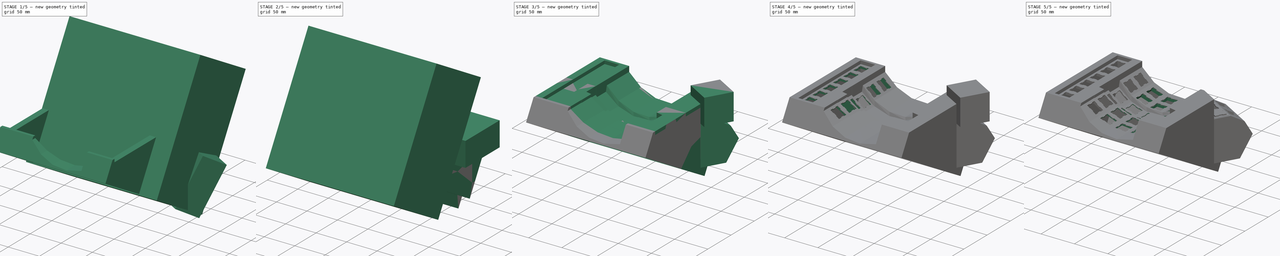
[diagram: build sequence overview — one tinted view per stage of 5, left to right]
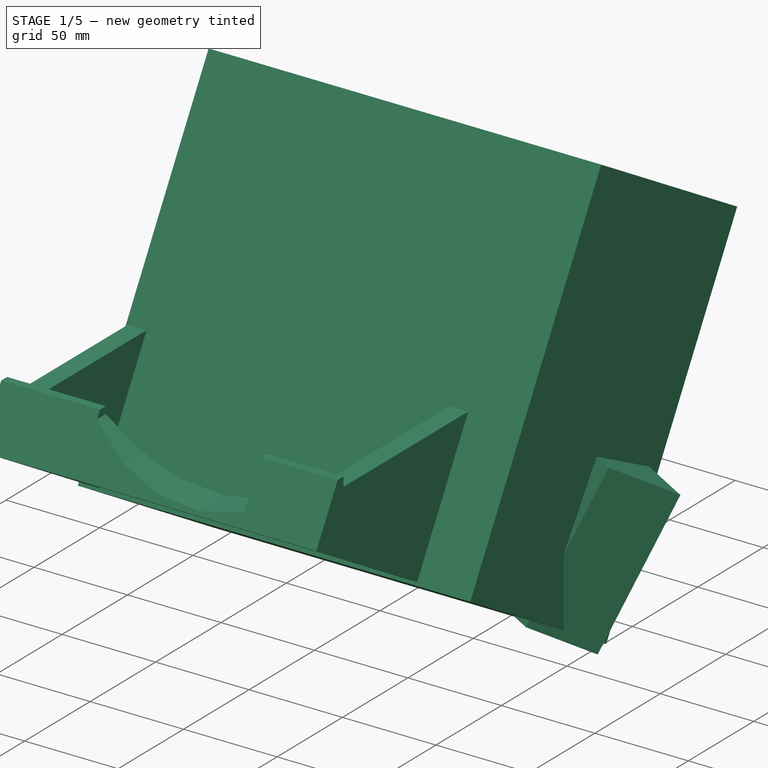
[diagram: stage 1 of 5 — iso view after this stage's code; geometry added in this stage tinted green]
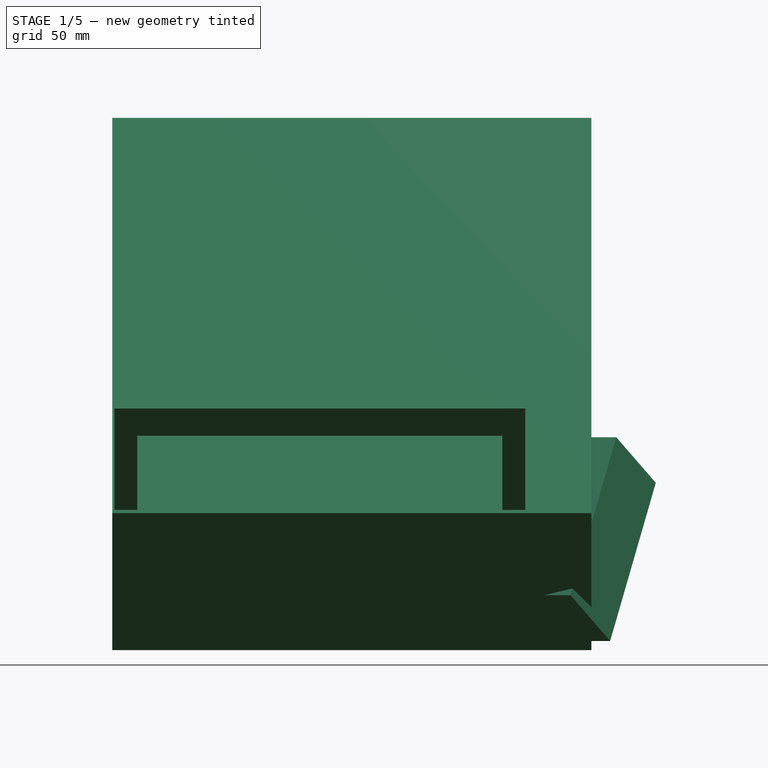
[diagram: stage 1 of 5 — front view after this stage's code; geometry added in this stage tinted green]
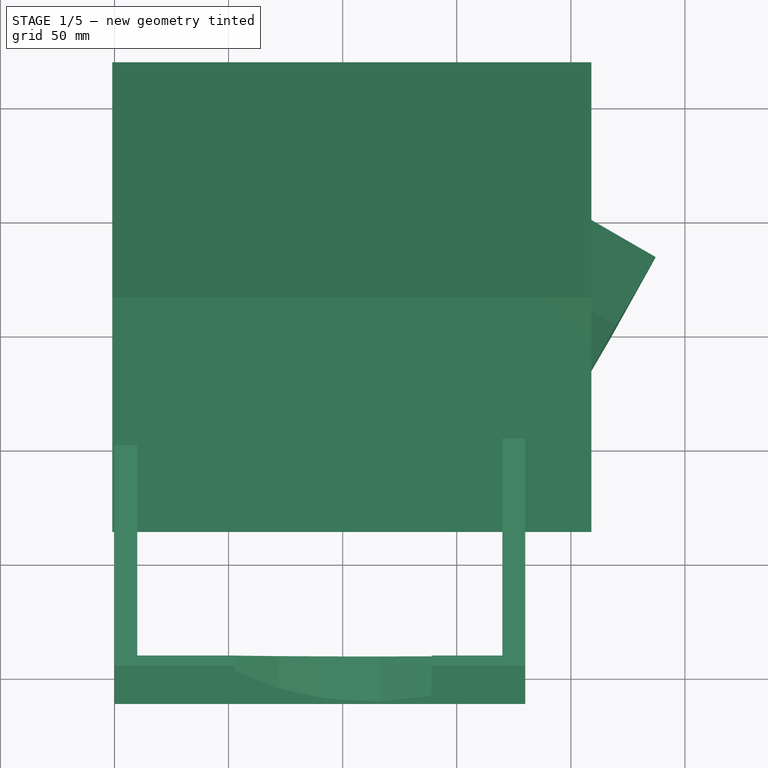
[diagram: stage 1 of 5 — top view after this stage's code; geometry added in this stage tinted green]
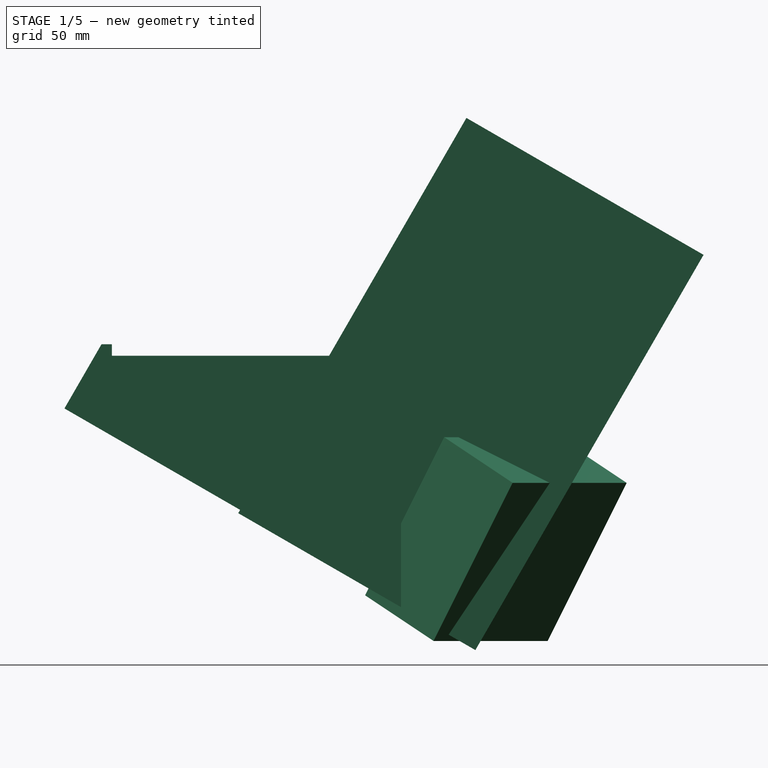
[diagram: stage 1 of 5 — right view after this stage's code; geometry added in this stage tinted green]
FCSTD DOCUMENT  (FreeCAD 0.18R16110 (Git))
Label: Keyboard-2.0
License: All rights reserved
LicenseURL: http://en.wikipedia.org/wiki/All_rights_reserved
objects: Part::Cut×95, Part::Box×71, Part::MultiFuse×70, Sketcher::SketchObject×21, Part::Extrusion×11, App::DocumentObjectGroup×2, Part::Chamfer×2, Part::Loft×1
note: 271 computed .brp shape members not serialized (recipe doc carries the construction recipe); baked Part::Feature solids carry a one-line shape summary decoded from their .brp

FEATURE [Part::Box] Box100  label="Cube099"
  AttacherType = Attacher::AttachEngine3D
  Height = 25
  Length = 20
  Placement = pos=(153.8,118.3,50) rot=(0,0,-1;0.523599rad)
  Width = 2
FEATURE [Part::Box] Box101  label="Cube100"
  AttacherType = Attacher::AttachEngine3D
  Height = 40
  Length = 80
  Placement = pos=(131,120,53.2) rot=(0,0,1;0rad)
  Width = 80
FEATURE [Part::Box] Box103  label="Cube102"
  AttacherType = Attacher::AttachEngine3D
  Height = 3
  Length = 23
  Placement = pos=(151,120,50) rot=(0,0,-1;0.523599rad)
  Width = 10
FEATURE [Part::Box] Box104  label="Cube103"
  AttacherType = Attacher::AttachEngine3D
  Height = 60
  Length = 55
  Placement = pos=(132.4,133,-6.8) rot=(0,0,-1;0.523599rad)
  Width = 70
FEATURE [Part::Box] Box105  label="Cube104"
  AttacherType = Attacher::AttachEngine3D
  Height = 40
  Length = 40
  Placement = pos=(155,120,53.2) rot=(0,0,-1;0.523599rad)
  Width = 40
FEATURE [Part::Box] Box107  label="Cube106"
  AttacherType = Attacher::AttachEngine3D
  Height = 60
  Length = 49
  Placement = pos=(131,120,-6.8) rot=(0,0,1;0rad)
  Width = 26
FEATURE [Part::Box] Box108  label="Cube107"
  AttacherType = Attacher::AttachEngine3D
  Height = 80
  Length = 44
  Placement = pos=(0,202,0) rot=(0,0,1;0rad)
  Width = 4
FEATURE [Part::Box] Box109  label="Cube108"
  AttacherType = Attacher::AttachEngine3D
  Height = 100
  Length = 180
  Placement = pos=(0,-4,-34) rot=(-1,0,0;0.523599rad)
  Width = 180
FEATURE [Part::Box] Box110  label="Cube109"
  AttacherType = Attacher::AttachEngine3D
  Height = 80
  Length = 100
  Placement = pos=(113.3,169,-30) rot=(-0.694747,0.186157,-0.694747;0.7362rad)
  Width = 40
FEATURE [Part::Box] Box111  label="Cube110"
  AttacherType = Attacher::AttachEngine3D
  Height = 160
  Length = 180
  Placement = pos=(0,-52,0) rot=(-1,0,0;0.523599rad)
  Width = 60
FEATURE [Sketcher::SketchObject] Sketch040  label="Frame - 046"
  Placement = pos=(0,98,0) rot=(1,0,0;1.5708rad)
  sketch-geometry (16):
    g0: LineSegment StartX=180 StartY=80 StartZ=0 EndX=150 EndY=80 EndZ=0
    g1: LineSegment StartX=150 StartY=68 StartZ=0 EndX=131.045 EndY=53.2787 EndZ=0
    g2: LineSegment StartX=131.045 StartY=53.2787 StartZ=0 EndX=108.199 EndY=45.9281 EndZ=0
    g3: LineSegment StartX=108.199 StartY=45.9281 StartZ=0 EndX=84.2157 EndY=46.8349 EndZ=0
    g4: LineSegment StartX=84.2157 StartY=46.8349 StartZ=0 EndX=61.9893 EndY=55.8895 EndZ=0
    g5: LineSegment StartX=61.9893 StartY=55.8895 StartZ=0 EndX=44.2002 EndY=72 EndZ=0
    g6: LineSegment StartX=44.2002 StartY=80 StartZ=0 EndX=32 EndY=80 EndZ=0
    g7: LineSegment StartX=0 StartY=80 StartZ=0 EndX=0 EndY=0 EndZ=0
    g8: LineSegment StartX=0 StartY=0 StartZ=0 EndX=180 EndY=0 EndZ=0
    g9: LineSegment StartX=180 StartY=0 StartZ=0 EndX=180 EndY=80 EndZ=0
    g10: LineSegment StartX=150 StartY=80 StartZ=0 EndX=150 EndY=68 EndZ=0
    g11: LineSegment StartX=0 StartY=80 StartZ=0 EndX=10 EndY=80 EndZ=0
    g12: LineSegment StartX=10 StartY=80 StartZ=0 EndX=10 EndY=75 EndZ=0
    g13: LineSegment StartX=32 StartY=75 StartZ=0 EndX=10 EndY=75 EndZ=0
    g14: LineSegment StartX=32 StartY=75 StartZ=0 EndX=32 EndY=80 EndZ=0
    g15: LineSegment StartX=44.2002 StartY=80 StartZ=0 EndX=44.2002 EndY=72 EndZ=0
  constraints (47):
    c: Horizontal(g0)
    c: Coincident(g1,g2)
    c: Coincident(g2,g3)
    c: Coincident(g3,g4)
    c: Coincident(g4,g5)
    c: Coincident(g7,g8)
    c: Horizontal(g8)
    c: Coincident(g8,g9)
    c: Coincident(g9,g0)
    c: Distance(g1) = 24
    c: Distance(g2) = 24
    c: Distance(g3) = 24
    c: Distance(g4) = 24
    c: Distance(g5) = 24
    c: Vertical(g7)
    c: Vertical(g9)
    c: Distance(g7) = 80
    c: Distance(g9) = 80
    c: Distance(g8) = 180
    c: Coincident(g-1,g7)
    c: Angle(g1,g2) = 2.79253
    c: Angle(g2,g3) = 2.79253
    c: Angle(g3,g4) = 2.79253
    c: Angle(g4,g5) = 2.79253
    c: Coincident(g10,g0)
    c: Coincident(g10,g1)
    c: Vertical(g10)
    c: Distance(g10) = 12
    c: Horizontal(g6)
    c: Distance(g0) = 30
    c: Coincident(g7,g11)
    c: Coincident(g12,g11)
    c: Coincident(g12,g13)
    c: Coincident(g13,g14)
    c: Coincident(g14,g6)
    c: Horizontal(g11)
    c: Distance(g11) = 10
    c: Vertical(g12)
    c: Horizontal(g13)
    c: Vertical(g14)
    c: Distance(g12) = 5
    c: Distance(g14) = 5
    c: Distance(g13) = 22
    c: Coincident(g15,g6)
    c: Coincident(g15,g5)
    c: Vertical(g15)
    c: Distance(g15) = 8
FEATURE [Sketcher::SketchObject] Sketch041  label="Switch Cut Out002"
  sketch-geometry (20):
    g0: LineSegment StartX=-0.000129595 StartY=15.5792 StartZ=0 EndX=5.28987 EndY=15.5792 EndZ=0
    g1: LineSegment StartX=5.28987 StartY=15.5792 StartZ=0 EndX=5.28987 EndY=14.7692 EndZ=0
    g2: LineSegment StartX=5.28987 StartY=14.7692 StartZ=0 EndX=10.2899 EndY=14.7692 EndZ=0
    g3: LineSegment StartX=10.2899 StartY=14.7692 StartZ=0 EndX=10.2899 EndY=15.5792 EndZ=0
    g4: LineSegment StartX=10.2899 StartY=15.5792 StartZ=0 EndX=15.5799 EndY=15.5792 EndZ=0
    g5: LineSegment StartX=15.5799 StartY=15.5792 StartZ=0 EndX=15.5799 EndY=10.2892 EndZ=0
    g6: LineSegment StartX=15.5799 StartY=10.2892 StartZ=0 EndX=14.7699 EndY=10.2892 EndZ=0
    g7: LineSegment StartX=14.7699 StartY=10.2892 StartZ=0 EndX=14.7699 EndY=5.28921 EndZ=0
    g8: LineSegment StartX=14.7699 StartY=5.28921 StartZ=0 EndX=15.5799 EndY=5.28921 EndZ=0
    g9: LineSegment StartX=15.5799 StartY=5.28921 StartZ=0 EndX=15.5799 EndY=-0.000794506 EndZ=0
    g10: LineSegment StartX=15.5799 StartY=-0.000794506 StartZ=0 EndX=10.2899 EndY=-0.000794506 EndZ=0
    g11: LineSegment StartX=10.2899 StartY=-0.000794506 StartZ=0 EndX=10.2899 EndY=0.809205 EndZ=0
    g12: LineSegment StartX=10.2899 StartY=0.809205 StartZ=0 EndX=5.28987 EndY=0.809205 EndZ=0
    g13: LineSegment StartX=5.28987 StartY=0.809205 StartZ=0 EndX=5.28987 EndY=-0.000794506 EndZ=0
    g14: LineSegment StartX=5.28987 StartY=-0.000794506 StartZ=0 EndX=-0.000129595 EndY=-0.000794506 EndZ=0
    g15: LineSegment StartX=-0.000129595 StartY=-0.000794506 StartZ=0 EndX=-0.000129595 EndY=5.28921 EndZ=0
    g16: LineSegment StartX=-0.000129595 StartY=5.28921 StartZ=0 EndX=0.80987 EndY=5.28921 EndZ=0
    g17: LineSegment StartX=0.80987 StartY=5.28921 StartZ=0 EndX=0.80987 EndY=10.2892 EndZ=0
    g18: LineSegment StartX=0.80987 StartY=10.2892 StartZ=0 EndX=-0.000129595 EndY=10.2892 EndZ=0
    g19: LineSegment StartX=-0.000129595 StartY=10.2892 StartZ=0 EndX=-0.000129595 EndY=15.5792 EndZ=0
  constraints (58):
    c: Coincident(g0,g1)
    c: Coincident(g1,g2)
    c: Coincident(g2,g3)
    c: Coincident(g3,g4)
    c: Coincident(g4,g5)
    c: Coincident(g5,g6)
    c: Coincident(g6,g7)
    c: Coincident(g7,g8)
    c: Coincident(g8,g9)
    c: Coincident(g9,g10)
    c: Coincident(g10,g11)
    c: Coincident(g11,g12)
    c: Coincident(g12,g13)
    c: Coincident(g13,g14)
    c: Coincident(g14,g15)
    c: Coincident(g15,g16)
    c: Coincident(g16,g17)
    c: Coincident(g17,g18)
    c: Coincident(g18,g19)
    c: Coincident(g19,g0)
    c: Horizontal(g0)
    c: DistanceX(g0,g0) = 5.29
    c: Vertical(g1)
    c: DistanceY(g1,g1) = 0.81
    c: Horizontal(g2)
    c: DistanceX(g2,g2) = 5
    c: Vertical(g3)
    c: DistanceY(g3,g3) = 0.81
    c: Horizontal(g4)
    c: DistanceX(g4,g4) = 5.29
    c: Vertical(g5)
    c: DistanceY(g5,g5) = 5.29
    c: Horizontal(g6)
    c: DistanceX(g6,g6) = -0.81
    c: Vertical(g7)
    c: DistanceY(g7,g7) = 5
    c: Horizontal(g8)
    c: DistanceX(g8,g8) = 0.81
    c: Vertical(g9)
    c: DistanceY(g9,g9) = 5.29
    c: Horizontal(g10)
    c: DistanceX(g10,g10) = -5.29
    c: Vertical(g11)
    c: DistanceY(g11,g11) = -0.81
    c: Horizontal(g12)
    c: DistanceX(g12,g12) = 5
    c: Vertical(g13)
    c: DistanceY(g13,g13) = 0.81
    c: Horizontal(g14)
    c: DistanceX(g14,g14) = 5.29
    c: Vertical(g15)
    c: DistanceY(g15,g15) = 5.29
    c: Horizontal(g16)
    c: DistanceX(g16,g16) = -0.81
    c: Vertical(g17)
    c: DistanceY(g17,g17) = 5
    c: Horizontal(g18)
    c: DistanceX(g18,g18) = 0.81
FEATURE [Sketcher::SketchObject] Sketch042  label="Thumb Shape Outside001"
  Placement = pos=(0,0,0) rot=(0.57735,0.57735,0.57735;2.0944rad)
  sketch-geometry (7):
    g0: LineSegment StartX=0 StartY=0 StartZ=0 EndX=22 EndY=0 EndZ=0
    g1: LineSegment StartX=22 StartY=0 StartZ=0 EndX=41.0526 EndY=-11 EndZ=0
    g2: LineSegment StartX=41.0526 StartY=-11 StartZ=0 EndX=52.0526 EndY=-30.0526 EndZ=0
    g3: LineSegment StartX=52.0526 StartY=-30.0526 StartZ=0 EndX=120 EndY=-30.0526 EndZ=0
    g4: LineSegment StartX=120 StartY=-30.0526 StartZ=0 EndX=120 EndY=89.9474 EndZ=0
    g5: LineSegment StartX=120 StartY=89.9474 StartZ=0 EndX=0 EndY=89.9474 EndZ=0
    g6: LineSegment StartX=0 StartY=89.9474 StartZ=0 EndX=0 EndY=0 EndZ=0
  constraints (20):
    c: Horizontal(g0)
    c: Horizontal(g3)
    c: Coincident(g0,g-1)
    c: Coincident(g6,g0)
    c: Vertical(g6)
    c: Coincident(g1,g0)
    c: Angle(g0,g1) = 2.61799
    c: Coincident(g2,g1)
    c: Angle(g1,g2) = 2.61799
    c: Coincident(g5,g6)
    c: Coincident(g5,g4)
    c: Horizontal(g5)
    c: Vertical(g4)
    c: Coincident(g3,g4)
    c: Coincident(g3,g2)
    c: Distance(g0) = 22
    c: Distance(g1) = 22
    c: Distance(g2) = 22
    c: Distance(g5) = 120
    c: Distance(g4) = 120
FEATURE [Part::Extrusion] Extrude029
  Base = -> Sketch042
  Dir = (1,0,0)
  DirMode = 2
  FaceMakerClass = Part::FaceMakerBullseye
  LengthFwd = 100
  LengthRev = 0
  Placement = pos=(93.8,155.6,53.2) rot=(0,0,-1;0.523599rad)
  Solid = true
  Symmetric = false
FEATURE [Sketcher::SketchObject] Sketch043  label="Frame - 047"
  Placement = pos=(0,8,0) rot=(1,0,0;1.5708rad)
  sketch-geometry (16):
    g0: LineSegment StartX=180 StartY=80 StartZ=0 EndX=160 EndY=80 EndZ=0
    g1: LineSegment StartX=139 StartY=80 StartZ=0 EndX=139 EndY=58 EndZ=0
    g2: LineSegment StartX=139 StartY=58 StartZ=0 EndX=116.391 EndY=53.7776 EndZ=0
    g3: LineSegment StartX=116.391 StartY=53.7776 StartZ=0 EndX=93.4594 EndY=55.5508 EndZ=0
    g4: LineSegment StartX=93.4594 StartY=55.5508 StartZ=0 EndX=71.7681 EndY=63.1986 EndZ=0
    g5: LineSegment StartX=71.7681 StartY=63.1986 StartZ=0 EndX=52.7954 EndY=76.2 EndZ=0
    g6: LineSegment StartX=52.7954 StartY=80 StartZ=0 EndX=32 EndY=80 EndZ=0
    g7: LineSegment StartX=0 StartY=80 StartZ=0 EndX=0 EndY=0 EndZ=0
    g8: LineSegment StartX=0 StartY=0 StartZ=0 EndX=180 EndY=0 EndZ=0
    g9: LineSegment StartX=180 StartY=0 StartZ=0 EndX=180 EndY=80 EndZ=0
    g10: LineSegment StartX=0 StartY=80 StartZ=0 EndX=10 EndY=80 EndZ=0
    g11: LineSegment StartX=10 StartY=80 StartZ=0 EndX=10 EndY=75 EndZ=0
    g12: LineSegment StartX=32 StartY=75 StartZ=0 EndX=10 EndY=75 EndZ=0
    g13: LineSegment StartX=32 StartY=75 StartZ=0 EndX=32 EndY=80 EndZ=0
    g14: LineSegment StartX=139 StartY=80 StartZ=0 EndX=160 EndY=80 EndZ=0
    g15: LineSegment StartX=52.7954 StartY=80 StartZ=0 EndX=52.7954 EndY=76.2 EndZ=0
  constraints (47):
    c: Horizontal(g0)
    c: Coincident(g1,g2)
    c: Coincident(g2,g3)
    c: Coincident(g3,g4)
    c: Coincident(g4,g5)
    c: Coincident(g7,g8)
    c: Horizontal(g8)
    c: Coincident(g8,g9)
    c: Coincident(g9,g0)
    c: Distance(g2) = 23
    c: Distance(g3) = 23
    c: Distance(g4) = 23
    c: Distance(g5) = 23
    c: Vertical(g7)
    c: Vertical(g9)
    c: Distance(g7) = 80
    c: Distance(g9) = 80
    c: Distance(g8) = 180
    c: Coincident(g-1,g7)
    c: Angle(g2,g3) = 2.87979
    c: Angle(g3,g4) = 2.87979
    c: Angle(g4,g5) = 2.87979
    c: Horizontal(g6)
    c: Coincident(g7,g10)
    c: Coincident(g11,g10)
    c: Coincident(g11,g12)
    c: Coincident(g12,g13)
    c: Coincident(g13,g6)
    c: Horizontal(g10)
    c: Distance(g10) = 10
    c: Vertical(g11)
    c: Horizontal(g12)
    c: Distance(g11) = 5
    c: Distance(g13) = 5
    c: Distance(g12) = 22
    c: Distance(g0) = 20
    c: Coincident(g0,g14)
    c: Coincident(g14,g1)
    c: Horizontal(g14)
    c: Distance(g14) = 21
    c: Distance(g1) = 22
    c: Coincident(g15,g6)
    c: Coincident(g15,g5)
    c: Vertical(g15)
    c: Vertical(g1)
    c: Vertical(g13)
    c: Distance(g15) = 3.8
FEATURE [Part::Extrusion] Extrude030
  Base = -> Sketch043
  Dir = (0,-1,2e-16)
  DirMode = 2
  FaceMakerClass = Part::FaceMakerBullseye
  LengthFwd = 60
  LengthRev = 0
  Placement = pos=(0,60,0) rot=(0,0,1;0rad)
  Solid = true
  Symmetric = false
FEATURE [Part::Box] Box113  label="Cube112"
  AttacherType = Attacher::AttachEngine3D
  Height = 140
  Length = 180
  Placement = pos=(0,100,-50) rot=(-1,0,0;0.523599rad)
  Width = 50
FEATURE [Part::Chamfer] Chamfer003
  Base = -> Box113
  Edges = 1 edges r=48: [Edge10]
FEATURE [Part::Box] Box114  label="Cube113"
  AttacherType = Attacher::AttachEngine3D
  Height = 80
  Length = 40
  Placement = pos=(0,8,0) rot=(0,0,1;0rad)
  Width = 60
FEATURE [Part::Box] Box115  label="Cube114"
  AttacherType = Attacher::AttachEngine3D
  Height = 100
  Length = 10
  Placement = pos=(170,26,-25) rot=(0,0,1;0rad)
  Width = 180
FEATURE [Part::Box] Box116  label="Cube115"
  AttacherType = Attacher::AttachEngine3D
  Height = 160
  Length = 180
  Placement = pos=(0,152,-60) rot=(-1,0,0;0.523599rad)
  Width = 60
FEATURE [Part::Box] Box117  label="Cube116"
  AttacherType = Attacher::AttachEngine3D
  Height = 80
  Length = 160
  Placement = pos=(10,110,-4) rot=(-1,0,0;0.523599rad)
  Width = 60
FEATURE [Part::Box] Box118  label="Cube117"
  AttacherType = Attacher::AttachEngine3D
  Height = 100
  Length = 160
  Placement = pos=(10,162,35) rot=(0,0,1;0rad)
  Width = 40
FEATURE [Part::Box] Box119  label="Cube118"
  AttacherType = Attacher::AttachEngine3D
  Height = 12
  Length = 12
  Placement = pos=(-1,162,70) rot=(0,0,1;0rad)
  Width = 40
FEATURE [Part::Box] Box120  label="Cube119"
  AttacherType = Attacher::AttachEngine3D
  Height = 20
  Length = 20
  Width = 20
FEATURE [Part::Box] Box121  label="Cube120"
  AttacherType = Attacher::AttachEngine3D
  Height = 100
  Length = 10
  Placement = pos=(0,26,-30) rot=(0,0,1;0rad)
  Width = 180
FEATURE [Part::Box] Box122  label="Cube121"
  AttacherType = Attacher::AttachEngine3D
  Height = 160
  Length = 180
  Placement = pos=(0,206,-60) rot=(0,0,1;0rad)
  Width = 60
FEATURE [Part::MultiFuse] Fusion091
  Shapes = -> [Extrude030,Box114]
FEATURE [Part::Extrusion] Extrude031
  Base = -> Sketch040
  Dir = (0,-1,2e-16)
  DirMode = 2
  FaceMakerClass = Part::FaceMakerBullseye
  LengthFwd = 50
  LengthRev = 0
  Placement = pos=(0,132,0) rot=(0,0,1;0rad)
  Solid = true
  Symmetric = false
FEATURE [Part::MultiFuse] Fusion097
  Shapes = -> [Extrude031,Chamfer003]
FEATURE [Part::Cut] Cut143
  Base = -> Fusion097
  Tool = -> Box122
FEATURE [Part::MultiFuse] Fusion098
  Shapes = -> [Cut143,Box121]
FEATURE [Part::MultiFuse] Fusion095
  Shapes = -> [Fusion098,Box115]
FEATURE [Part::MultiFuse] Fusion094
  Shapes = -> [Fusion095,Fusion091]
FEATURE [Part::Cut] Cut139
  Base = -> Fusion094
  Tool = -> Box111
FEATURE [Part::Cut] Cut138
  Base = -> Cut139
  Tool = -> Box109
FEATURE [Part::MultiFuse] Fusion099
  Shapes = -> [Box108,Cut138]
FEATURE [Part::Cut] Cut140
  Base = -> Fusion099
  Tool = -> Box116
FEATURE [Part::Cut] Cut141
  Base = -> Cut140
  Tool = -> Box118
FEATURE [Part::Cut] Cut142
  Base = -> Cut141
  Tool = -> Box117
FEATURE [Part::Cut] Cut137
  Base = -> Cut142
  Placement = pos=(0,-60,0) rot=(0,0,1;0rad)
  Tool = -> Box119
FEATURE [Part::Cut] Cut135
  Base = -> Cut137
  Tool = -> Box101
FEATURE [Part::Extrusion] Extrude032
  Base = -> Sketch041
  Dir = (0,0,1)
  DirMode = 2
  FaceMakerClass = Part::FaceMakerBullseye
  LengthFwd = 11.6
  LengthRev = 0
  Placement = pos=(2,2,10) rot=(0,0,1;0rad)
  Solid = true
  Symmetric = false
FEATURE [Part::MultiFuse] Fusion089  label="SwitchCut047"
  Placement = pos=(143.4,128,31.6) rot=(0,0,-1;0.523599rad)
  Shapes = -> [Box120,Extrude032]
FEATURE [Part::MultiFuse] Fusion090  label="SwitchCut048"
  Placement = pos=(145,152.8,30) rot=(-0.881412,0.236174,-0.409065;1.1598rad)
  Shapes = -> [Box120,Extrude032]
FEATURE [Part::MultiFuse] Fusion093  label="SwitchCut050"
  Placement = pos=(168,139.5,30) rot=(-0.881412,0.236174,-0.409065;1.1598rad)
  Shapes = -> [Box120,Extrude032]
FEATURE [Part::MultiFuse] Fusion096  label="SwitchCut051"
  Placement = pos=(163,130,33.8) rot=(-0.694747,0.186157,-0.694747;0.7362rad)
  Shapes = -> [Box120,Extrude032]
FEATURE [Part::Cut] Cut144
  Base = -> Cut135
  Tool = -> Box105
FEATURE [Part::MultiFuse] Fusion083
  Shapes = -> [Cut144,Box100]
FEATURE [Part::MultiFuse] Fusion085
  Shapes = -> [Fusion083,Box103]
FEATURE [Part::MultiFuse] Fusion087
  Shapes = -> [Fusion085,Box107]
FEATURE [Part::MultiFuse] Fusion084
  Shapes = -> [Fusion087,Box104]
FEATURE [Part::Cut] Cut132
  Base = -> Fusion084
  Tool = -> Extrude029
FEATURE [Part::Box] Box124  label="Cube123"
  AttacherType = Attacher::AttachEngine3D
  Height = 200
  Length = 210
  Placement = pos=(-1,63.4,6) rot=(-1,0,0;0.523599rad)
  Width = 120
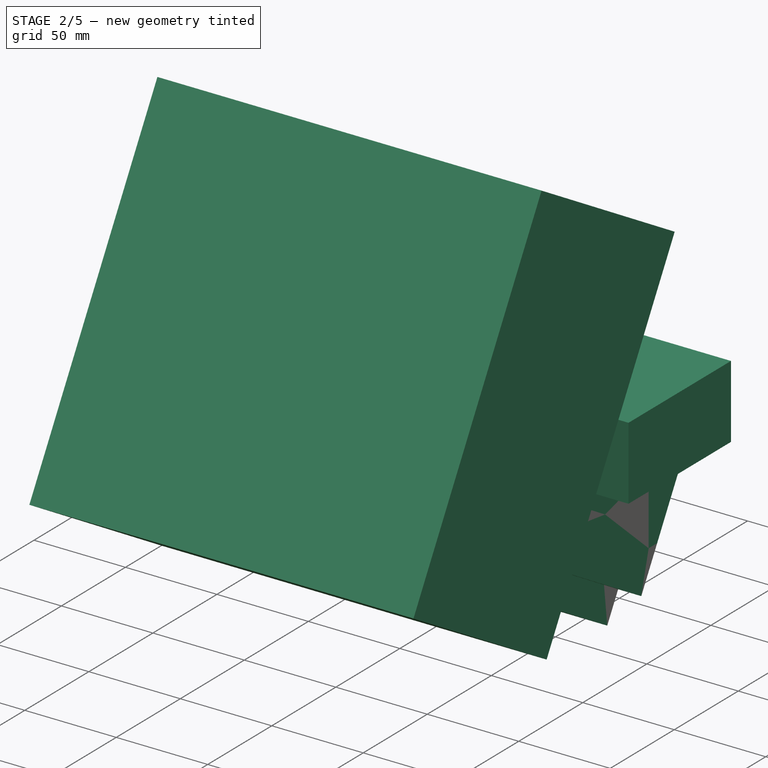
[diagram: stage 2 of 5 — iso view after this stage's code; geometry added in this stage tinted green]
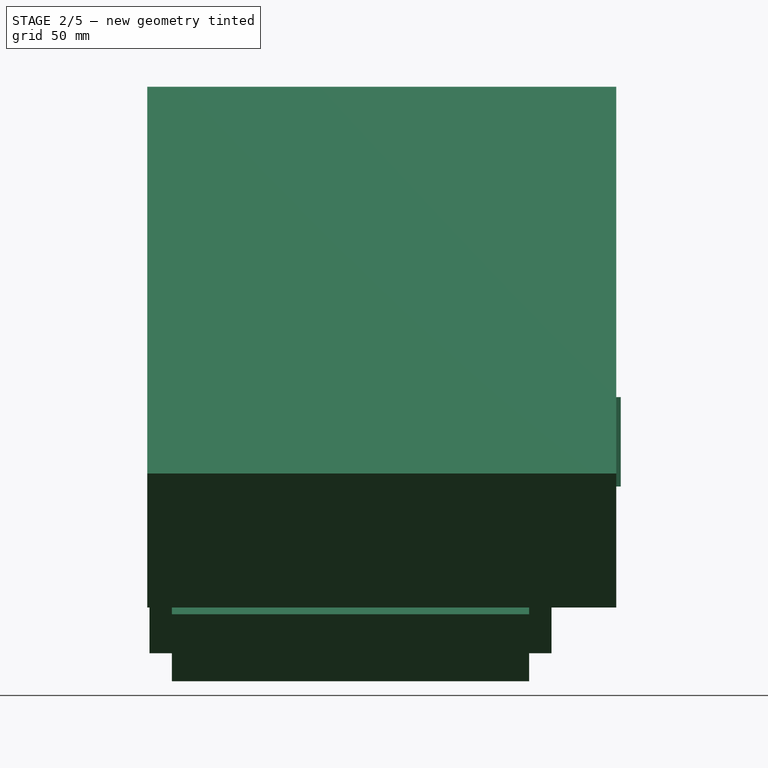
[diagram: stage 2 of 5 — front view after this stage's code; geometry added in this stage tinted green]
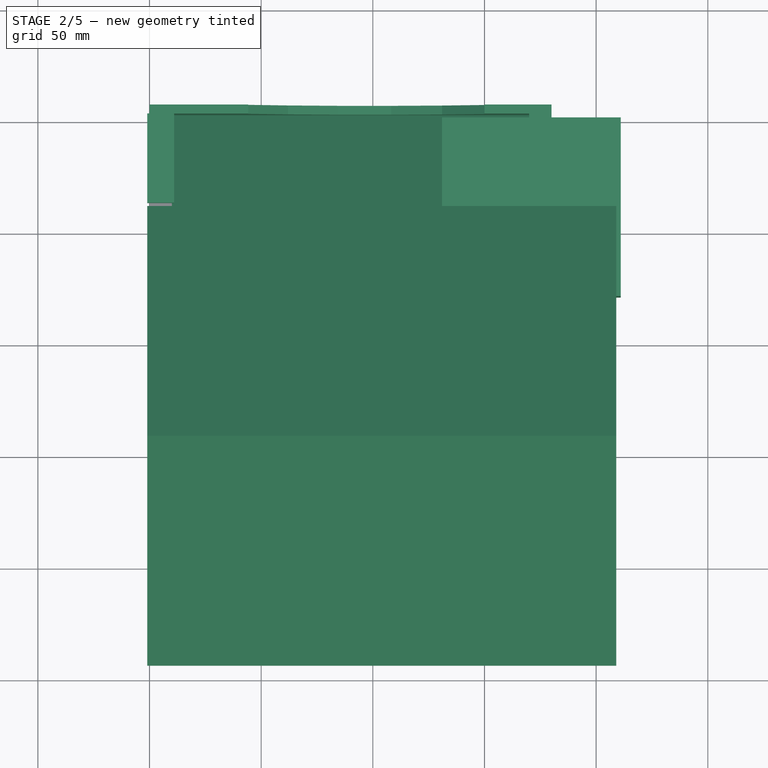
[diagram: stage 2 of 5 — top view after this stage's code; geometry added in this stage tinted green]
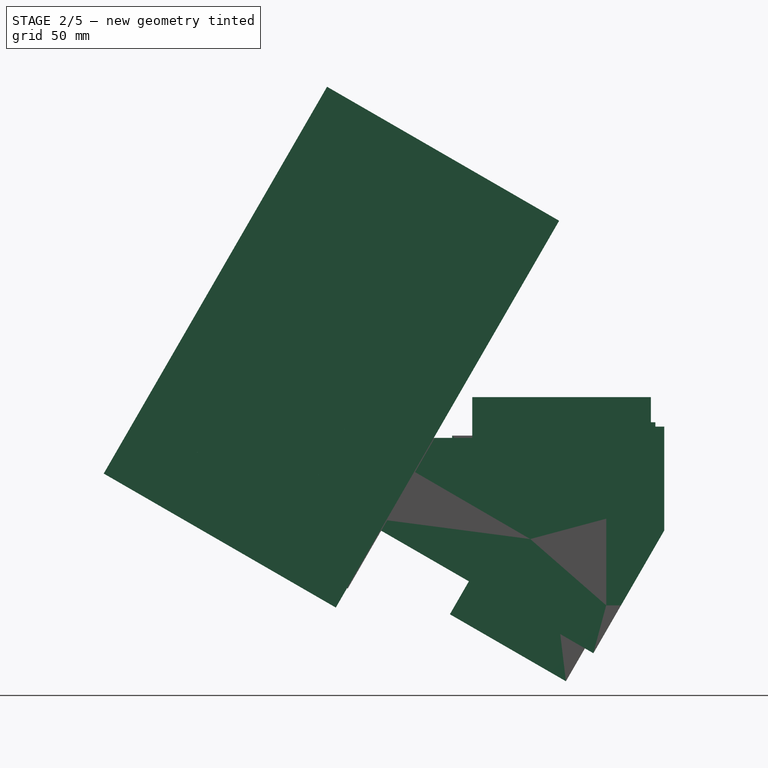
[diagram: stage 2 of 5 — right view after this stage's code; geometry added in this stage tinted green]
FEATURE [Sketcher::SketchObject] Sketch026  label="Thumb Shape Outside"
  Placement = pos=(0,0,0) rot=(0.57735,0.57735,0.57735;2.0944rad)
  sketch-geometry (7):
    g0: LineSegment StartX=0 StartY=0 StartZ=0 EndX=22 EndY=0 EndZ=0
    g1: LineSegment StartX=22 StartY=0 StartZ=0 EndX=41.0526 EndY=-11 EndZ=0
    g2: LineSegment StartX=41.0526 StartY=-11 StartZ=0 EndX=52.0526 EndY=-30.0526 EndZ=0
    g3: LineSegment StartX=52.0526 StartY=-30.0526 StartZ=0 EndX=120 EndY=-30.0526 EndZ=0
    g4: LineSegment StartX=120 StartY=-30.0526 StartZ=0 EndX=120 EndY=89.9474 EndZ=0
    g5: LineSegment StartX=120 StartY=89.9474 StartZ=0 EndX=0 EndY=89.9474 EndZ=0
    g6: LineSegment StartX=0 StartY=89.9474 StartZ=0 EndX=0 EndY=0 EndZ=0
  constraints (20):
    c: Horizontal(g0)
    c: Horizontal(g3)
    c: Coincident(g0,g-1)
    c: Coincident(g6,g0)
    c: Vertical(g6)
    c: Coincident(g1,g0)
    c: Angle(g0,g1) = 2.61799
    c: Coincident(g2,g1)
    c: Angle(g1,g2) = 2.61799
    c: Coincident(g5,g6)
    c: Coincident(g5,g4)
    c: Horizontal(g5)
    c: Vertical(g4)
    c: Coincident(g3,g4)
    c: Coincident(g3,g2)
    c: Distance(g0) = 22
    c: Distance(g1) = 22
    c: Distance(g2) = 22
    c: Distance(g5) = 120
    c: Distance(g4) = 120
FEATURE [Sketcher::SketchObject] Sketch032  label="Thumb Shape Inside"
  Placement = pos=(0,0,0) rot=(0.57735,0.57735,0.57735;2.0944rad)
  sketch-geometry (6):
    g0: LineSegment StartX=0 StartY=0 StartZ=0 EndX=18 EndY=0 EndZ=0
    g1: LineSegment StartX=18 StartY=0 StartZ=0 EndX=33.5885 EndY=-9 EndZ=0
    g2: LineSegment StartX=33.5885 StartY=-9 StartZ=0 EndX=42.5885 EndY=-24.5885 EndZ=0
    g3: LineSegment StartX=42.5885 StartY=-24.5885 StartZ=0 EndX=42.5885 EndY=-34.5885 EndZ=0
    g4: LineSegment StartX=42.5885 StartY=-34.5885 StartZ=0 EndX=0 EndY=-34.5885 EndZ=0
    g5: LineSegment StartX=0 StartY=-34.5885 StartZ=0 EndX=0 EndY=0 EndZ=0
  constraints (17):
    c: Horizontal(g0)
    c: Vertical(g3)
    c: Horizontal(g4)
    c: Coincident(g0,g-1)
    c: Coincident(g1,g0)
    c: Coincident(g1,g2)
    c: Coincident(g3,g2)
    c: Coincident(g3,g4)
    c: Coincident(g4,g5)
    c: Coincident(g5,g0)
    c: Distance(g0) = 18
    c: Angle(g0,g1) = 2.61799
    c: Distance(g1) = 18
    c: Angle(g1,g2) = 2.61799
    c: Distance(g2) = 18
    c: Distance(g3) = 10
    c: Vertical(g5)
FEATURE [App::DocumentObjectGroup] Group  label="Sketches"
  Group = -> [Sketch,Group001,Sketch026,Sketch032]
FEATURE [Sketcher::SketchObject] Sketch034  label="Switch Cut Out001"
  sketch-geometry (20):
    g0: LineSegment StartX=-0.000129595 StartY=15.5792 StartZ=0 EndX=5.28987 EndY=15.5792 EndZ=0
    g1: LineSegment StartX=5.28987 StartY=15.5792 StartZ=0 EndX=5.28987 EndY=14.7692 EndZ=0
    g2: LineSegment StartX=5.28987 StartY=14.7692 StartZ=0 EndX=10.2899 EndY=14.7692 EndZ=0
    g3: LineSegment StartX=10.2899 StartY=14.7692 StartZ=0 EndX=10.2899 EndY=15.5792 EndZ=0
    g4: LineSegment StartX=10.2899 StartY=15.5792 StartZ=0 EndX=15.5799 EndY=15.5792 EndZ=0
    g5: LineSegment StartX=15.5799 StartY=15.5792 StartZ=0 EndX=15.5799 EndY=10.2892 EndZ=0
    g6: LineSegment StartX=15.5799 StartY=10.2892 StartZ=0 EndX=14.7699 EndY=10.2892 EndZ=0
    g7: LineSegment StartX=14.7699 StartY=10.2892 StartZ=0 EndX=14.7699 EndY=5.28921 EndZ=0
    g8: LineSegment StartX=14.7699 StartY=5.28921 StartZ=0 EndX=15.5799 EndY=5.28921 EndZ=0
    g9: LineSegment StartX=15.5799 StartY=5.28921 StartZ=0 EndX=15.5799 EndY=-0.000794506 EndZ=0
    g10: LineSegment StartX=15.5799 StartY=-0.000794506 StartZ=0 EndX=10.2899 EndY=-0.000794506 EndZ=0
    g11: LineSegment StartX=10.2899 StartY=-0.000794506 StartZ=0 EndX=10.2899 EndY=0.809205 EndZ=0
    g12: LineSegment StartX=10.2899 StartY=0.809205 StartZ=0 EndX=5.28987 EndY=0.809205 EndZ=0
    g13: LineSegment StartX=5.28987 StartY=0.809205 StartZ=0 EndX=5.28987 EndY=-0.000794506 EndZ=0
    g14: LineSegment StartX=5.28987 StartY=-0.000794506 StartZ=0 EndX=-0.000129595 EndY=-0.000794506 EndZ=0
    g15: LineSegment StartX=-0.000129595 StartY=-0.000794506 StartZ=0 EndX=-0.000129595 EndY=5.28921 EndZ=0
    g16: LineSegment StartX=-0.000129595 StartY=5.28921 StartZ=0 EndX=0.80987 EndY=5.28921 EndZ=0
    g17: LineSegment StartX=0.80987 StartY=5.28921 StartZ=0 EndX=0.80987 EndY=10.2892 EndZ=0
    g18: LineSegment StartX=0.80987 StartY=10.2892 StartZ=0 EndX=-0.000129595 EndY=10.2892 EndZ=0
    g19: LineSegment StartX=-0.000129595 StartY=10.2892 StartZ=0 EndX=-0.000129595 EndY=15.5792 EndZ=0
  constraints (58):
    c: Coincident(g0,g1)
    c: Coincident(g1,g2)
    c: Coincident(g2,g3)
    c: Coincident(g3,g4)
    c: Coincident(g4,g5)
    c: Coincident(g5,g6)
    c: Coincident(g6,g7)
    c: Coincident(g7,g8)
    c: Coincident(g8,g9)
    c: Coincident(g9,g10)
    c: Coincident(g10,g11)
    c: Coincident(g11,g12)
    c: Coincident(g12,g13)
    c: Coincident(g13,g14)
    c: Coincident(g14,g15)
    c: Coincident(g15,g16)
    c: Coincident(g16,g17)
    c: Coincident(g17,g18)
    c: Coincident(g18,g19)
    c: Coincident(g19,g0)
    c: Horizontal(g0)
    c: DistanceX(g0,g0) = 5.29
    c: Vertical(g1)
    c: DistanceY(g1,g1) = 0.81
    c: Horizontal(g2)
    c: DistanceX(g2,g2) = 5
    c: Vertical(g3)
    c: DistanceY(g3,g3) = 0.81
    c: Horizontal(g4)
    c: DistanceX(g4,g4) = 5.29
    c: Vertical(g5)
    c: DistanceY(g5,g5) = 5.29
    c: Horizontal(g6)
    c: DistanceX(g6,g6) = -0.81
    c: Vertical(g7)
    c: DistanceY(g7,g7) = 5
    c: Horizontal(g8)
    c: DistanceX(g8,g8) = 0.81
    c: Vertical(g9)
    c: DistanceY(g9,g9) = 5.29
    c: Horizontal(g10)
    c: DistanceX(g10,g10) = -5.29
    c: Vertical(g11)
    c: DistanceY(g11,g11) = -0.81
    c: Horizontal(g12)
    c: DistanceX(g12,g12) = 5
    c: Vertical(g13)
    c: DistanceY(g13,g13) = 0.81
    c: Horizontal(g14)
    c: DistanceX(g14,g14) = 5.29
    c: Vertical(g15)
    c: DistanceY(g15,g15) = 5.29
    c: Horizontal(g16)
    c: DistanceX(g16,g16) = -0.81
    c: Vertical(g17)
    c: DistanceY(g17,g17) = 5
    c: Horizontal(g18)
    c: DistanceX(g18,g18) = 0.81
FEATURE [Sketcher::SketchObject] Sketch035  label="Frame - 044"
  Placement = pos=(0,8,0) rot=(1,0,0;1.5708rad)
  sketch-geometry (16):
    g0: LineSegment StartX=180 StartY=80 StartZ=0 EndX=160 EndY=80 EndZ=0
    g1: LineSegment StartX=139 StartY=80 StartZ=0 EndX=139 EndY=58 EndZ=0
    g2: LineSegment StartX=139 StartY=58 StartZ=0 EndX=116.391 EndY=53.7776 EndZ=0
    g3: LineSegment StartX=116.391 StartY=53.7776 StartZ=0 EndX=93.4594 EndY=55.5508 EndZ=0
    g4: LineSegment StartX=93.4594 StartY=55.5508 StartZ=0 EndX=71.7681 EndY=63.1986 EndZ=0
    g5: LineSegment StartX=71.7681 StartY=63.1986 StartZ=0 EndX=52.7954 EndY=76.2 EndZ=0
    g6: LineSegment StartX=52.7954 StartY=80 StartZ=0 EndX=32 EndY=80 EndZ=0
    g7: LineSegment StartX=0 StartY=80 StartZ=0 EndX=0 EndY=0 EndZ=0
    g8: LineSegment StartX=0 StartY=0 StartZ=0 EndX=180 EndY=0 EndZ=0
    g9: LineSegment StartX=180 StartY=0 StartZ=0 EndX=180 EndY=80 EndZ=0
    g10: LineSegment StartX=0 StartY=80 StartZ=0 EndX=10 EndY=80 EndZ=0
    g11: LineSegment StartX=10 StartY=80 StartZ=0 EndX=10 EndY=75 EndZ=0
    g12: LineSegment StartX=32 StartY=75 StartZ=0 EndX=10 EndY=75 EndZ=0
    g13: LineSegment StartX=32 StartY=75 StartZ=0 EndX=32 EndY=80 EndZ=0
    g14: LineSegment StartX=139 StartY=80 StartZ=0 EndX=160 EndY=80 EndZ=0
    g15: LineSegment StartX=52.7954 StartY=80 StartZ=0 EndX=52.7954 EndY=76.2 EndZ=0
  constraints (47):
    c: Horizontal(g0)
    c: Coincident(g1,g2)
    c: Coincident(g2,g3)
    c: Coincident(g3,g4)
    c: Coincident(g4,g5)
    c: Coincident(g7,g8)
    c: Horizontal(g8)
    c: Coincident(g8,g9)
    c: Coincident(g9,g0)
    c: Distance(g2) = 23
    c: Distance(g3) = 23
    c: Distance(g4) = 23
    c: Distance(g5) = 23
    c: Vertical(g7)
    c: Vertical(g9)
    c: Distance(g7) = 80
    c: Distance(g9) = 80
    c: Distance(g8) = 180
    c: Coincident(g-1,g7)
    c: Angle(g2,g3) = 2.87979
    c: Angle(g3,g4) = 2.87979
    c: Angle(g4,g5) = 2.87979
    c: Horizontal(g6)
    c: Coincident(g7,g10)
    c: Coincident(g11,g10)
    c: Coincident(g11,g12)
    c: Coincident(g12,g13)
    c: Coincident(g13,g6)
    c: Horizontal(g10)
    c: Distance(g10) = 10
    c: Vertical(g11)
    c: Horizontal(g12)
    c: Distance(g11) = 5
    c: Distance(g13) = 5
    c: Distance(g12) = 22
    c: Distance(g0) = 20
    c: Coincident(g0,g14)
    c: Coincident(g14,g1)
    c: Horizontal(g14)
    c: Distance(g14) = 21
    c: Distance(g1) = 22
    c: Coincident(g15,g6)
    c: Coincident(g15,g5)
    c: Vertical(g15)
    c: Vertical(g1)
    c: Vertical(g13)
    c: Distance(g15) = 3.8
FEATURE [Sketcher::SketchObject] Sketch039  label="Frame - 045"
  Placement = pos=(0,98,0) rot=(1,0,0;1.5708rad)
  sketch-geometry (16):
    g0: LineSegment StartX=180 StartY=80 StartZ=0 EndX=150 EndY=80 EndZ=0
    g1: LineSegment StartX=150 StartY=68 StartZ=0 EndX=131.045 EndY=53.2787 EndZ=0
    g2: LineSegment StartX=131.045 StartY=53.2787 StartZ=0 EndX=108.199 EndY=45.9281 EndZ=0
    g3: LineSegment StartX=108.199 StartY=45.9281 StartZ=0 EndX=84.2157 EndY=46.8349 EndZ=0
    g4: LineSegment StartX=84.2157 StartY=46.8349 StartZ=0 EndX=61.9893 EndY=55.8895 EndZ=0
    g5: LineSegment StartX=61.9893 StartY=55.8895 StartZ=0 EndX=44.2002 EndY=72 EndZ=0
    g6: LineSegment StartX=44.2002 StartY=80 StartZ=0 EndX=32 EndY=80 EndZ=0
    g7: LineSegment StartX=0 StartY=80 StartZ=0 EndX=0 EndY=0 EndZ=0
    g8: LineSegment StartX=0 StartY=0 StartZ=0 EndX=180 EndY=0 EndZ=0
    g9: LineSegment StartX=180 StartY=0 StartZ=0 EndX=180 EndY=80 EndZ=0
    g10: LineSegment StartX=150 StartY=80 StartZ=0 EndX=150 EndY=68 EndZ=0
    g11: LineSegment StartX=0 StartY=80 StartZ=0 EndX=10 EndY=80 EndZ=0
    g12: LineSegment StartX=10 StartY=80 StartZ=0 EndX=10 EndY=75 EndZ=0
    g13: LineSegment StartX=32 StartY=75 StartZ=0 EndX=10 EndY=75 EndZ=0
    g14: LineSegment StartX=32 StartY=75 StartZ=0 EndX=32 EndY=80 EndZ=0
    g15: LineSegment StartX=44.2002 StartY=80 StartZ=0 EndX=44.2002 EndY=72 EndZ=0
  constraints (47):
    c: Horizontal(g0)
    c: Coincident(g1,g2)
    c: Coincident(g2,g3)
    c: Coincident(g3,g4)
    c: Coincident(g4,g5)
    c: Coincident(g7,g8)
    c: Horizontal(g8)
    c: Coincident(g8,g9)
    c: Coincident(g9,g0)
    c: Distance(g1) = 24
    c: Distance(g2) = 24
    c: Distance(g3) = 24
    c: Distance(g4) = 24
    c: Distance(g5) = 24
    c: Vertical(g7)
    c: Vertical(g9)
    c: Distance(g7) = 80
    c: Distance(g9) = 80
    c: Distance(g8) = 180
    c: Coincident(g-1,g7)
    c: Angle(g1,g2) = 2.79253
    c: Angle(g2,g3) = 2.79253
    c: Angle(g3,g4) = 2.79253
    c: Angle(g4,g5) = 2.79253
    c: Coincident(g10,g0)
    c: Coincident(g10,g1)
    c: Vertical(g10)
    c: Distance(g10) = 12
    c: Horizontal(g6)
    c: Distance(g0) = 30
    c: Coincident(g7,g11)
    c: Coincident(g12,g11)
    c: Coincident(g12,g13)
    c: Coincident(g13,g14)
    c: Coincident(g14,g6)
    c: Horizontal(g11)
    c: Distance(g11) = 10
    c: Vertical(g12)
    c: Horizontal(g13)
    c: Vertical(g14)
    c: Distance(g12) = 5
    c: Distance(g14) = 5
    c: Distance(g13) = 22
    c: Coincident(g15,g6)
    c: Coincident(g15,g5)
    c: Vertical(g15)
    c: Distance(g15) = 8
FEATURE [Part::Extrusion] Extrude021
  Base = -> Sketch039
  Dir = (0,-1,2e-16)
  DirMode = 2
  FaceMakerClass = Part::FaceMakerBullseye
  LengthFwd = 50
  LengthRev = 0
  Placement = pos=(0,132,0) rot=(0,0,1;0rad)
  Solid = true
  Symmetric = false
FEATURE [Part::Box] Box073  label="Cube072"
  AttacherType = Attacher::AttachEngine3D
  Height = 160
  Length = 180
  Placement = pos=(0,206,-60) rot=(0,0,1;0rad)
  Width = 60
FEATURE [Part::Box] Box074  label="Cube073"
  AttacherType = Attacher::AttachEngine3D
  Height = 140
  Length = 180
  Placement = pos=(0,100,-50) rot=(-1,0,0;0.523599rad)
  Width = 50
FEATURE [Part::Chamfer] Chamfer002
  Base = -> Box074
  Edges = 1 edges r=48: [Edge10]
FEATURE [Part::MultiFuse] Fusion073
  Shapes = -> [Extrude021,Chamfer002]
FEATURE [Part::Cut] Cut107
  Base = -> Fusion073
  Tool = -> Box073
FEATURE [Part::Box] Box075  label="Cube074"
  AttacherType = Attacher::AttachEngine3D
  Height = 12
  Length = 12
  Placement = pos=(-1,162,70) rot=(0,0,1;0rad)
  Width = 40
FEATURE [Part::Box] Box077  label="Cube076"
  AttacherType = Attacher::AttachEngine3D
  Height = 100
  Length = 10
  Placement = pos=(0,26,-30) rot=(0,0,1;0rad)
  Width = 180
FEATURE [Part::MultiFuse] Fusion074
  Shapes = -> [Cut107,Box077]
FEATURE [Part::Box] Box078  label="Cube077"
  AttacherType = Attacher::AttachEngine3D
  Height = 80
  Length = 40
  Placement = pos=(0,8,0) rot=(0,0,1;0rad)
  Width = 60
FEATURE [Part::Box] Box079  label="Cube078"
  AttacherType = Attacher::AttachEngine3D
  Height = 100
  Length = 10
  Placement = pos=(170,26,-25) rot=(0,0,1;0rad)
  Width = 180
FEATURE [Part::MultiFuse] Fusion071
  Shapes = -> [Fusion074,Box079]
FEATURE [Part::Box] Box080  label="Cube079"
  AttacherType = Attacher::AttachEngine3D
  Height = 160
  Length = 180
  Placement = pos=(0,152,-60) rot=(-1,0,0;0.523599rad)
  Width = 60
FEATURE [Part::Box] Box081  label="Cube080"
  AttacherType = Attacher::AttachEngine3D
  Height = 80
  Length = 160
  Placement = pos=(10,110,-4) rot=(-1,0,0;0.523599rad)
  Width = 60
FEATURE [Part::Extrusion] Extrude023
  Base = -> Sketch035
  Dir = (0,-1,2e-16)
  DirMode = 2
  FaceMakerClass = Part::FaceMakerBullseye
  LengthFwd = 60
  LengthRev = 0
  Placement = pos=(0,60,0) rot=(0,0,1;0rad)
  Solid = true
  Symmetric = false
FEATURE [Part::MultiFuse] Fusion072
  Shapes = -> [Extrude023,Box078]
FEATURE [Part::MultiFuse] Fusion068
  Shapes = -> [Fusion071,Fusion072]
FEATURE [Part::Box] Box082  label="Cube081"
  AttacherType = Attacher::AttachEngine3D
  Height = 100
  Length = 160
  Placement = pos=(10,162,35) rot=(0,0,1;0rad)
  Width = 40
FEATURE [Part::Box] Box083  label="Cube082"
  AttacherType = Attacher::AttachEngine3D
  Height = 80
  Length = 44
  Placement = pos=(0,202,0) rot=(0,0,1;0rad)
  Width = 4
FEATURE [Part::Box] Box084  label="Cube083"
  AttacherType = Attacher::AttachEngine3D
  Height = 160
  Length = 180
  Placement = pos=(0,-52,0) rot=(-1,0,0;0.523599rad)
  Width = 60
FEATURE [Part::Cut] Cut102
  Base = -> Fusion068
  Tool = -> Box084
FEATURE [Part::Box] Box085  label="Cube084"
  AttacherType = Attacher::AttachEngine3D
  Height = 100
  Length = 180
  Placement = pos=(0,-4,-34) rot=(-1,0,0;0.523599rad)
  Width = 180
FEATURE [Part::Cut] Cut105
  Base = -> Cut102
  Tool = -> Box085
FEATURE [Part::MultiFuse] Fusion070
  Shapes = -> [Box083,Cut105]
FEATURE [Part::Cut] Cut112
  Base = -> Fusion070
  Tool = -> Box080
FEATURE [Part::Cut] Cut108
  Base = -> Cut112
  Tool = -> Box082
FEATURE [Part::Box] Box088  label="Cube087"
  AttacherType = Attacher::AttachEngine3D
  Height = 40
  Length = 80
  Placement = pos=(131,120,53.2) rot=(0,0,1;0rad)
  Width = 80
FEATURE [Part::Box] Box090  label="Cube089"
  AttacherType = Attacher::AttachEngine3D
  Height = 25
  Length = 20
  Placement = pos=(153.8,118.3,50) rot=(0,0,1;-0.523599rad)
  Width = 2
FEATURE [Part::Box] Box094  label="Cube093"
  AttacherType = Attacher::AttachEngine3D
  Height = 3
  Length = 23
  Placement = pos=(151,120,50) rot=(0,0,1;-0.523599rad)
  Width = 10
FEATURE [Part::Box] Box096  label="Cube095"
  AttacherType = Attacher::AttachEngine3D
  Height = 3
  Length = 24
  Placement = pos=(131,118,50) rot=(0,0,1;0rad)
  Width = 4
FEATURE [Part::Box] Box098  label="Cube097"
  AttacherType = Attacher::AttachEngine3D
  Height = 10
  Length = 10
  Placement = pos=(145,111,66) rot=(0,0,1;0rad)
  Width = 10
FEATURE [Part::Box] Box099  label="Cube098"
  AttacherType = Attacher::AttachEngine3D
  Height = 3
  Length = 24
  Placement = pos=(131,118,50) rot=(0,0,1;0rad)
  Width = 4
FEATURE [Part::Box] Box102  label="Cube101"
  AttacherType = Attacher::AttachEngine3D
  Height = 15
  Length = 36
  Placement = pos=(136.3,106,52) rot=(0,-1,0;0.698132rad)
  Width = 20
FEATURE [Part::Box] Box106  label="Cube105"
  AttacherType = Attacher::AttachEngine3D
  Height = 17.4
  Length = 17
  Placement = pos=(138,118,50) rot=(0,0,1;0rad)
  Width = 2
FEATURE [Part::Cut] Cut136
  Base = -> Box106
  Tool = -> Box102
FEATURE [Part::Box] Box112  label="Cube111"
  AttacherType = Attacher::AttachEngine3D
  Height = 10
  Length = 10
  Placement = pos=(145,111,66) rot=(0,0,1;0rad)
  Width = 10
FEATURE [Sketcher::SketchObject] Sketch044  label="Thumb Shape Inside001"
  Placement = pos=(0,0,0) rot=(0.57735,0.57735,0.57735;2.0944rad)
  sketch-geometry (6):
    g0: LineSegment StartX=0 StartY=0 StartZ=0 EndX=18 EndY=0 EndZ=0
    g1: LineSegment StartX=18 StartY=0 StartZ=0 EndX=33.5885 EndY=-9 EndZ=0
    g2: LineSegment StartX=33.5885 StartY=-9 StartZ=0 EndX=42.5885 EndY=-24.5885 EndZ=0
    g3: LineSegment StartX=42.5885 StartY=-24.5885 StartZ=0 EndX=42.5885 EndY=-34.5885 EndZ=0
    g4: LineSegment StartX=42.5885 StartY=-34.5885 StartZ=0 EndX=0 EndY=-34.5885 EndZ=0
    g5: LineSegment StartX=0 StartY=-34.5885 StartZ=0 EndX=0 EndY=0 EndZ=0
  constraints (17):
    c: Horizontal(g0)
    c: Vertical(g3)
    c: Horizontal(g4)
    c: Coincident(g0,g-1)
    c: Coincident(g1,g0)
    c: Coincident(g1,g2)
    c: Coincident(g3,g2)
    c: Coincident(g3,g4)
    c: Coincident(g4,g5)
    c: Coincident(g5,g0)
    c: Distance(g0) = 18
    c: Angle(g0,g1) = 2.61799
    c: Distance(g1) = 18
    c: Angle(g1,g2) = 2.61799
    c: Distance(g2) = 18
    c: Distance(g3) = 10
    c: Vertical(g5)
FEATURE [Part::Extrusion] Extrude028
  Base = -> Sketch044
  Dir = (1,0,0)
  DirMode = 2
  FaceMakerClass = Part::FaceMakerBullseye
  LengthFwd = 40
  LengthRev = 0
  Placement = pos=(134,128,50) rot=(0,0,-1;0.523599rad)
  Solid = true
  Symmetric = false
FEATURE [Part::MultiFuse] Fusion092  label="SwitchCut049"
  Placement = pos=(140,143,34) rot=(-0.694747,0.186157,-0.694747;0.73618rad)
  Shapes = -> [Box120,Extrude032]
FEATURE [Part::Cut] Cut133
  Base = -> Cut132
  Tool = -> Box110
FEATURE [Part::Cut] Cut134
  Base = -> Cut133
  Tool = -> Fusion090
FEATURE [Part::Cut] Cut131
  Base = -> Cut134
  Tool = -> Fusion096
FEATURE [Part::Cut] Cut128
  Base = -> Cut131
  Tool = -> Fusion093
FEATURE [Part::Cut] Cut130
  Base = -> Cut128
  Tool = -> Fusion089
FEATURE [Part::Cut] Cut129
  Base = -> Cut130
  Tool = -> Fusion092
FEATURE [Part::Cut] Cut127
  Base = -> Cut129
  Tool = -> Extrude028
FEATURE [Part::MultiFuse] Fusion086
  Shapes = -> [Cut127,Box099]
FEATURE [Part::Cut] Cut126
  Base = -> Fusion086
  Tool = -> Box112
FEATURE [Part::MultiFuse] Fusion088
  Shapes = -> [Cut126,Cut136]
FEATURE [Part::Box] Box123  label="Cube122"
  AttacherType = Attacher::AttachEngine3D
  Height = 200
  Length = 210
  Placement = pos=(-1,-45,59) rot=(1,0,0;-0.523599rad)
  Width = 120
FEATURE [Part::Cut] Cut146  label="Case Fingers"
  Base = -> Fusion088
  Tool = -> Box124
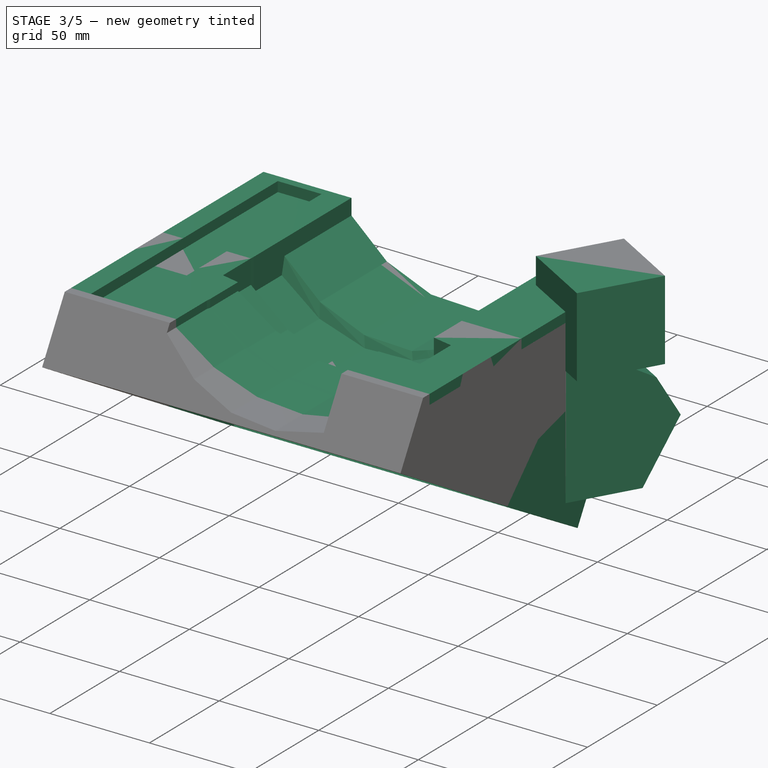
[diagram: stage 3 of 5 — iso view after this stage's code; geometry added in this stage tinted green]
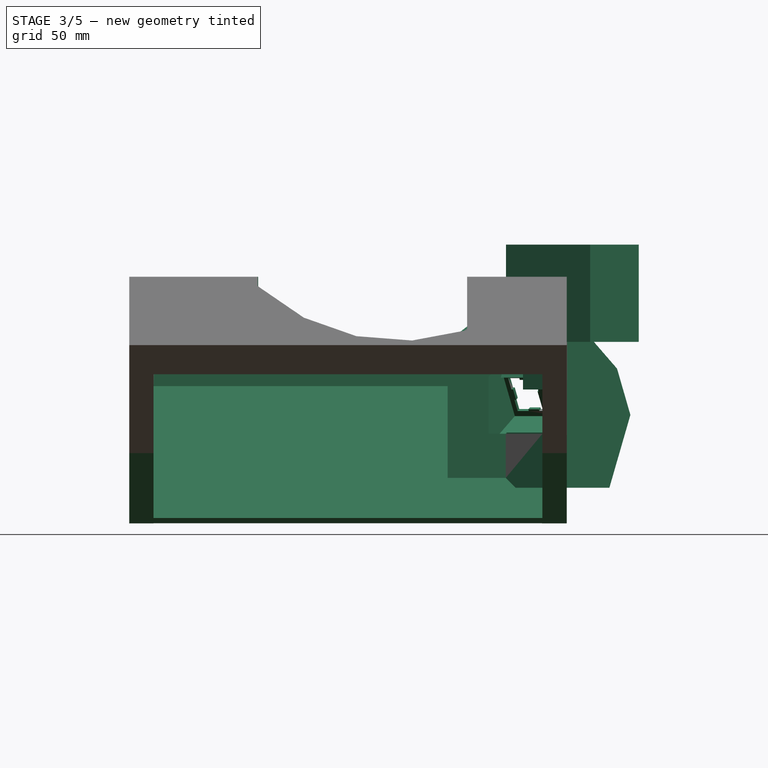
[diagram: stage 3 of 5 — front view after this stage's code; geometry added in this stage tinted green]
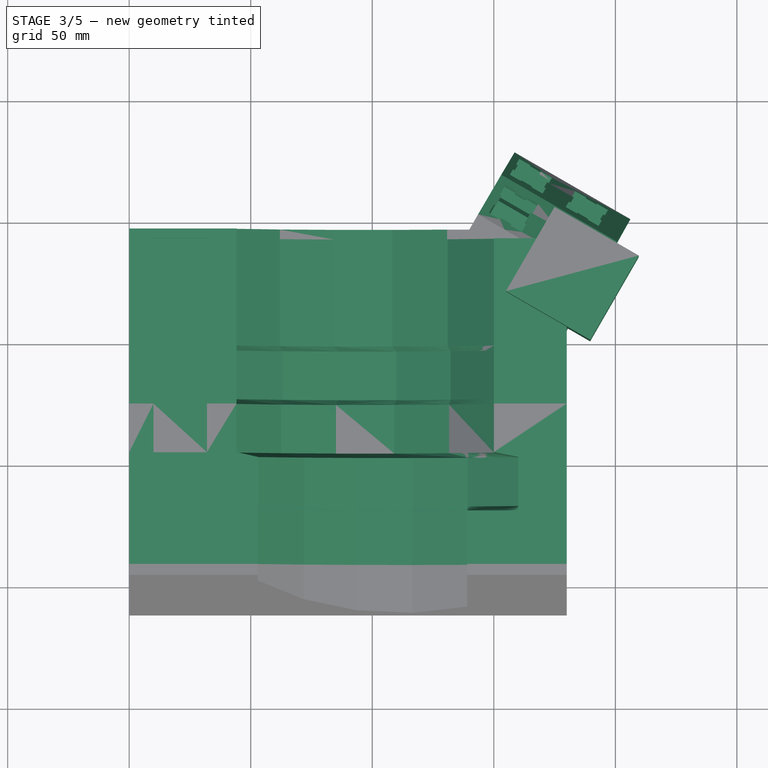
[diagram: stage 3 of 5 — top view after this stage's code; geometry added in this stage tinted green]
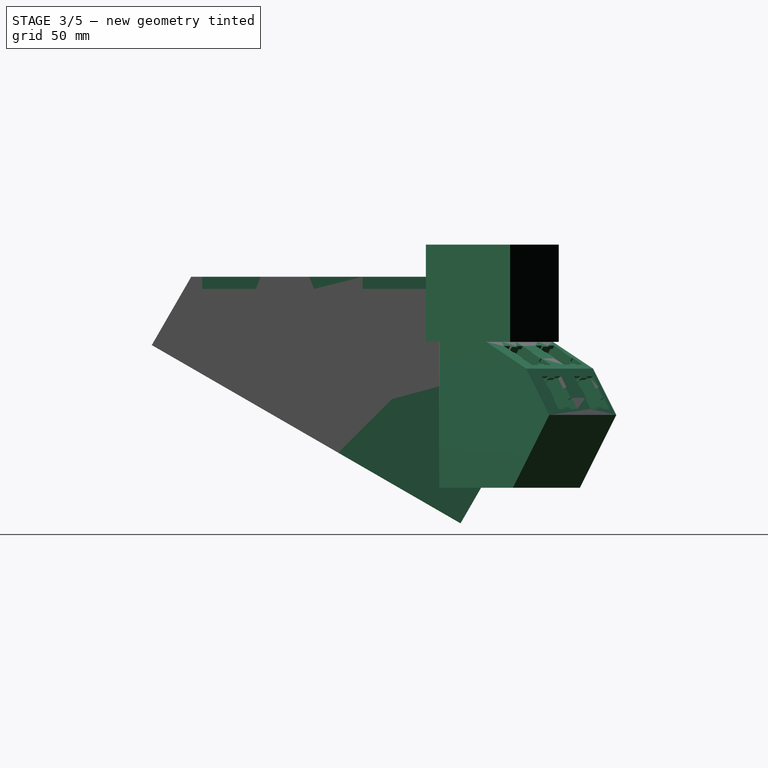
[diagram: stage 3 of 5 — right view after this stage's code; geometry added in this stage tinted green]
FEATURE [Sketcher::SketchObject] Sketch  label="Switch Cut Out"
  sketch-geometry (20):
    g0: LineSegment StartX=-0.000129595 StartY=15.5792 StartZ=0 EndX=5.28987 EndY=15.5792 EndZ=0
    g1: LineSegment StartX=5.28987 StartY=15.5792 StartZ=0 EndX=5.28987 EndY=14.7692 EndZ=0
    g2: LineSegment StartX=5.28987 StartY=14.7692 StartZ=0 EndX=10.2899 EndY=14.7692 EndZ=0
    g3: LineSegment StartX=10.2899 StartY=14.7692 StartZ=0 EndX=10.2899 EndY=15.5792 EndZ=0
    g4: LineSegment StartX=10.2899 StartY=15.5792 StartZ=0 EndX=15.5799 EndY=15.5792 EndZ=0
    g5: LineSegment StartX=15.5799 StartY=15.5792 StartZ=0 EndX=15.5799 EndY=10.2892 EndZ=0
    g6: LineSegment StartX=15.5799 StartY=10.2892 StartZ=0 EndX=14.7699 EndY=10.2892 EndZ=0
    g7: LineSegment StartX=14.7699 StartY=10.2892 StartZ=0 EndX=14.7699 EndY=5.28921 EndZ=0
    g8: LineSegment StartX=14.7699 StartY=5.28921 StartZ=0 EndX=15.5799 EndY=5.28921 EndZ=0
    g9: LineSegment StartX=15.5799 StartY=5.28921 StartZ=0 EndX=15.5799 EndY=-0.000794506 EndZ=0
    g10: LineSegment StartX=15.5799 StartY=-0.000794506 StartZ=0 EndX=10.2899 EndY=-0.000794506 EndZ=0
    g11: LineSegment StartX=10.2899 StartY=-0.000794506 StartZ=0 EndX=10.2899 EndY=0.809205 EndZ=0
    g12: LineSegment StartX=10.2899 StartY=0.809205 StartZ=0 EndX=5.28987 EndY=0.809205 EndZ=0
    g13: LineSegment StartX=5.28987 StartY=0.809205 StartZ=0 EndX=5.28987 EndY=-0.000794506 EndZ=0
    g14: LineSegment StartX=5.28987 StartY=-0.000794506 StartZ=0 EndX=-0.000129595 EndY=-0.000794506 EndZ=0
    g15: LineSegment StartX=-0.000129595 StartY=-0.000794506 StartZ=0 EndX=-0.000129595 EndY=5.28921 EndZ=0
    g16: LineSegment StartX=-0.000129595 StartY=5.28921 StartZ=0 EndX=0.80987 EndY=5.28921 EndZ=0
    g17: LineSegment StartX=0.80987 StartY=5.28921 StartZ=0 EndX=0.80987 EndY=10.2892 EndZ=0
    g18: LineSegment StartX=0.80987 StartY=10.2892 StartZ=0 EndX=-0.000129595 EndY=10.2892 EndZ=0
    g19: LineSegment StartX=-0.000129595 StartY=10.2892 StartZ=0 EndX=-0.000129595 EndY=15.5792 EndZ=0
  constraints (58):
    c: Coincident(g0,g1)
    c: Coincident(g1,g2)
    c: Coincident(g2,g3)
    c: Coincident(g3,g4)
    c: Coincident(g4,g5)
    c: Coincident(g5,g6)
    c: Coincident(g6,g7)
    c: Coincident(g7,g8)
    c: Coincident(g8,g9)
    c: Coincident(g9,g10)
    c: Coincident(g10,g11)
    c: Coincident(g11,g12)
    c: Coincident(g12,g13)
    c: Coincident(g13,g14)
    c: Coincident(g14,g15)
    c: Coincident(g15,g16)
    c: Coincident(g16,g17)
    c: Coincident(g17,g18)
    c: Coincident(g18,g19)
    c: Coincident(g19,g0)
    c: Horizontal(g0)
    c: DistanceX(g0,g0) = 5.29
    c: Vertical(g1)
    c: DistanceY(g1,g1) = 0.81
    c: Horizontal(g2)
    c: DistanceX(g2,g2) = 5
    c: Vertical(g3)
    c: DistanceY(g3,g3) = 0.81
    c: Horizontal(g4)
    c: DistanceX(g4,g4) = 5.29
    c: Vertical(g5)
    c: DistanceY(g5,g5) = 5.29
    c: Horizontal(g6)
    c: DistanceX(g6,g6) = -0.81
    c: Vertical(g7)
    c: DistanceY(g7,g7) = 5
    c: Horizontal(g8)
    c: DistanceX(g8,g8) = 0.81
    c: Vertical(g9)
    c: DistanceY(g9,g9) = 5.29
    c: Horizontal(g10)
    c: DistanceX(g10,g10) = -5.29
    c: Vertical(g11)
    c: DistanceY(g11,g11) = -0.81
    c: Horizontal(g12)
    c: DistanceX(g12,g12) = 5
    c: Vertical(g13)
    c: DistanceY(g13,g13) = 0.81
    c: Horizontal(g14)
    c: DistanceX(g14,g14) = 5.29
    c: Vertical(g15)
    c: DistanceY(g15,g15) = 5.29
    c: Horizontal(g16)
    c: DistanceX(g16,g16) = -0.81
    c: Vertical(g17)
    c: DistanceY(g17,g17) = 5
    c: Horizontal(g18)
    c: DistanceX(g18,g18) = 0.81
FEATURE [Sketcher::SketchObject] Sketch001  label="Frame - 10"
  Placement = pos=(0,32,0) rot=(1,0,0;1.5708rad)
  sketch-geometry (16):
    g0: LineSegment StartX=180 StartY=80 StartZ=0 EndX=160 EndY=80 EndZ=0
    g1: LineSegment StartX=160 StartY=68 StartZ=0 EndX=139.279 EndY=58.0175 EndZ=0
    g2: LineSegment StartX=139.279 StartY=58.0175 StartZ=0 EndX=116.681 EndY=53.7381 EndZ=0
    g3: LineSegment StartX=116.681 StartY=53.7381 StartZ=0 EndX=93.7449 EndY=55.4534 EndZ=0
    g4: LineSegment StartX=93.7449 StartY=55.4534 StartZ=0 EndX=72.0344 EndY=63.0465 EndZ=0
    g5: LineSegment StartX=72.0344 StartY=63.0465 StartZ=0 EndX=53.029 EndY=76 EndZ=0
    g6: LineSegment StartX=53.029 StartY=80 StartZ=0 EndX=32 EndY=80 EndZ=0
    g7: LineSegment StartX=0 StartY=80 StartZ=0 EndX=0 EndY=0 EndZ=0
    g8: LineSegment StartX=0 StartY=0 StartZ=0 EndX=180 EndY=0 EndZ=0
    g9: LineSegment StartX=180 StartY=0 StartZ=0 EndX=180 EndY=80 EndZ=0
    g10: LineSegment StartX=160 StartY=80 StartZ=0 EndX=160 EndY=68 EndZ=0
    g11: LineSegment StartX=0 StartY=80 StartZ=0 EndX=10 EndY=80 EndZ=0
    g12: LineSegment StartX=10 StartY=80 StartZ=0 EndX=10 EndY=75 EndZ=0
    g13: LineSegment StartX=32 StartY=75 StartZ=0 EndX=10 EndY=75 EndZ=0
    g14: LineSegment StartX=32 StartY=75 StartZ=0 EndX=32 EndY=80 EndZ=0
    g15: LineSegment StartX=53.029 StartY=80 StartZ=0 EndX=53.029 EndY=76 EndZ=0
  constraints (47):
    c: Horizontal(g0)
    c: Coincident(g1,g2)
    c: Coincident(g2,g3)
    c: Coincident(g3,g4)
    c: Coincident(g4,g5)
    c: Coincident(g7,g8)
    c: Horizontal(g8)
    c: Coincident(g8,g9)
    c: Coincident(g9,g0)
    c: Distance(g1) = 23
    c: Distance(g2) = 23
    c: Distance(g3) = 23
    c: Distance(g4) = 23
    c: Distance(g5) = 23
    c: Vertical(g7)
    c: Vertical(g9)
    c: Distance(g7) = 80
    c: Distance(g9) = 80
    c: Distance(g8) = 180
    c: Coincident(g-1,g7)
    c: Angle(g1,g2) = 2.87979
    c: Angle(g2,g3) = 2.87979
    c: Angle(g3,g4) = 2.87979
    c: Angle(g4,g5) = 2.87979
    c: Coincident(g10,g0)
    c: Coincident(g10,g1)
    c: Vertical(g10)
    c: Distance(g10) = 12
    c: Horizontal(g6)
    c: Distance(g0) = 20
    c: Coincident(g7,g11)
    c: Coincident(g12,g11)
    c: Coincident(g12,g13)
    c: Coincident(g13,g14)
    c: Coincident(g14,g6)
    c: Horizontal(g11)
    c: Distance(g11) = 10
    c: Vertical(g12)
    c: Horizontal(g13)
    c: Vertical(g14)
    c: Distance(g12) = 5
    c: Distance(g14) = 5
    c: Distance(g13) = 22
    c: Coincident(g15,g6)
    c: Coincident(g15,g5)
    c: Vertical(g15)
    c: Distance(g15) = 4
FEATURE [Sketcher::SketchObject] Sketch005  label="Frame - 00"
  Placement = pos=(0,8,0) rot=(1,0,0;1.5708rad)
  sketch-geometry (16):
    g0: LineSegment StartX=180 StartY=80 StartZ=0 EndX=160 EndY=80 EndZ=0
    g1: LineSegment StartX=139 StartY=80 StartZ=0 EndX=139 EndY=58 EndZ=0
    g2: LineSegment StartX=139 StartY=58 StartZ=0 EndX=116.391 EndY=53.7776 EndZ=0
    g3: LineSegment StartX=116.391 StartY=53.7776 StartZ=0 EndX=93.4594 EndY=55.5508 EndZ=0
    g4: LineSegment StartX=93.4594 StartY=55.5508 StartZ=0 EndX=71.7681 EndY=63.1986 EndZ=0
    g5: LineSegment StartX=71.7681 StartY=63.1986 StartZ=0 EndX=52.7954 EndY=76.2 EndZ=0
    g6: LineSegment StartX=52.7954 StartY=80 StartZ=0 EndX=32 EndY=80 EndZ=0
    g7: LineSegment StartX=0 StartY=80 StartZ=0 EndX=0 EndY=0 EndZ=0
    g8: LineSegment StartX=0 StartY=0 StartZ=0 EndX=180 EndY=0 EndZ=0
    g9: LineSegment StartX=180 StartY=0 StartZ=0 EndX=180 EndY=80 EndZ=0
    g10: LineSegment StartX=0 StartY=80 StartZ=0 EndX=10 EndY=80 EndZ=0
    g11: LineSegment StartX=10 StartY=80 StartZ=0 EndX=10 EndY=75 EndZ=0
    g12: LineSegment StartX=32 StartY=75 StartZ=0 EndX=10 EndY=75 EndZ=0
    g13: LineSegment StartX=32 StartY=75 StartZ=0 EndX=32 EndY=80 EndZ=0
    g14: LineSegment StartX=139 StartY=80 StartZ=0 EndX=160 EndY=80 EndZ=0
    g15: LineSegment StartX=52.7954 StartY=80 StartZ=0 EndX=52.7954 EndY=76.2 EndZ=0
  constraints (47):
    c: Horizontal(g0)
    c: Coincident(g1,g2)
    c: Coincident(g2,g3)
    c: Coincident(g3,g4)
    c: Coincident(g4,g5)
    c: Coincident(g7,g8)
    c: Horizontal(g8)
    c: Coincident(g8,g9)
    c: Coincident(g9,g0)
    c: Distance(g2) = 23
    c: Distance(g3) = 23
    c: Distance(g4) = 23
    c: Distance(g5) = 23
    c: Vertical(g7)
    c: Vertical(g9)
    c: Distance(g7) = 80
    c: Distance(g9) = 80
    c: Distance(g8) = 180
    c: Coincident(g-1,g7)
    c: Angle(g2,g3) = 2.87979
    c: Angle(g3,g4) = 2.87979
    c: Angle(g4,g5) = 2.87979
    c: Horizontal(g6)
    c: Coincident(g7,g10)
    c: Coincident(g11,g10)
    c: Coincident(g11,g12)
    c: Coincident(g12,g13)
    c: Coincident(g13,g6)
    c: Horizontal(g10)
    c: Distance(g10) = 10
    c: Vertical(g11)
    c: Horizontal(g12)
    c: Distance(g11) = 5
    c: Distance(g13) = 5
    c: Distance(g12) = 22
    c: Distance(g0) = 20
    c: Coincident(g0,g14)
    c: Coincident(g14,g1)
    c: Horizontal(g14)
    c: Distance(g14) = 21
    c: Distance(g1) = 22
    c: Coincident(g15,g6)
    c: Coincident(g15,g5)
    c: Vertical(g15)
    c: Vertical(g1)
    c: Vertical(g13)
    c: Distance(g15) = 3.8
FEATURE [Sketcher::SketchObject] Sketch009  label="Frame - 20"
  Placement = pos=(0,54,0) rot=(1,0,0;1.5708rad)
  sketch-geometry (16):
    g0: LineSegment StartX=180 StartY=80 StartZ=0 EndX=150 EndY=80 EndZ=0
    g1: LineSegment StartX=150 StartY=68 StartZ=0 EndX=131.615 EndY=52.5731 EndZ=0
    g2: LineSegment StartX=131.615 StartY=52.5731 StartZ=0 EndX=109.062 EndY=44.3646 EndZ=0
    g3: LineSegment StartX=109.062 StartY=44.3646 StartZ=0 EndX=85.0623 EndY=44.3646 EndZ=0
    g4: LineSegment StartX=85.0623 StartY=44.3646 StartZ=0 EndX=62.5097 EndY=52.5731 EndZ=0
    g5: LineSegment StartX=62.5097 StartY=52.5731 StartZ=0 EndX=44.1246 EndY=68 EndZ=0
    g6: LineSegment StartX=44.1246 StartY=80 StartZ=0 EndX=32 EndY=80 EndZ=0
    g7: LineSegment StartX=0 StartY=80 StartZ=0 EndX=0 EndY=0 EndZ=0
    g8: LineSegment StartX=0 StartY=0 StartZ=0 EndX=180 EndY=0 EndZ=0
    g9: LineSegment StartX=180 StartY=0 StartZ=0 EndX=180 EndY=80 EndZ=0
    g10: LineSegment StartX=150 StartY=80 StartZ=0 EndX=150 EndY=68 EndZ=0
    g11: LineSegment StartX=0 StartY=80 StartZ=0 EndX=10 EndY=80 EndZ=0
    g12: LineSegment StartX=10 StartY=80 StartZ=0 EndX=10 EndY=75 EndZ=0
    g13: LineSegment StartX=32 StartY=75 StartZ=0 EndX=10 EndY=75 EndZ=0
    g14: LineSegment StartX=32 StartY=75 StartZ=0 EndX=32 EndY=80 EndZ=0
    g15: LineSegment StartX=44.1246 StartY=80 StartZ=0 EndX=44.1246 EndY=68 EndZ=0
  constraints (47):
    c: Horizontal(g0)
    c: Coincident(g1,g2)
    c: Coincident(g2,g3)
    c: Coincident(g3,g4)
    c: Coincident(g4,g5)
    c: Coincident(g7,g8)
    c: Horizontal(g8)
    c: Coincident(g8,g9)
    c: Coincident(g9,g0)
    c: Distance(g1) = 24
    c: Distance(g2) = 24
    c: Distance(g3) = 24
    c: Distance(g4) = 24
    c: Distance(g5) = 24
    c: Vertical(g7)
    c: Vertical(g9)
    c: Distance(g7) = 80
    c: Distance(g9) = 80
    c: Distance(g8) = 180
    c: Coincident(g-1,g7)
    c: Angle(g1,g2) = 2.79253
    c: Angle(g2,g3) = 2.79253
    c: Angle(g3,g4) = 2.79253
    c: Angle(g4,g5) = 2.79253
    c: Coincident(g10,g0)
    c: Coincident(g10,g1)
    c: Vertical(g10)
    c: Distance(g10) = 12
    c: Horizontal(g6)
    c: Distance(g0) = 30
    c: Coincident(g7,g11)
    c: Coincident(g12,g11)
    c: Coincident(g12,g13)
    c: Coincident(g13,g14)
    c: Coincident(g14,g6)
    c: Horizontal(g11)
    c: Distance(g11) = 10
    c: Vertical(g12)
    c: Horizontal(g13)
    c: Vertical(g14)
    c: Distance(g12) = 5
    c: Distance(g14) = 5
    c: Distance(g13) = 22
    c: Coincident(g15,g6)
    c: Coincident(g15,g5)
    c: Vertical(g15)
    c: Distance(g15) = 12
FEATURE [Sketcher::SketchObject] Sketch011  label="Frame - 30"
  Placement = pos=(0,76,0) rot=(1,0,0;1.5708rad)
  sketch-geometry (16):
    g0: LineSegment StartX=180 StartY=80 StartZ=0 EndX=150 EndY=80 EndZ=0
    g1: LineSegment StartX=150 StartY=68 StartZ=0 EndX=132.211 EndY=51.8895 EndZ=0
    g2: LineSegment StartX=132.211 StartY=51.8895 StartZ=0 EndX=109.984 EndY=42.8349 EndZ=0
    g3: LineSegment StartX=109.984 StartY=42.8349 StartZ=0 EndX=86.0016 EndY=41.9281 EndZ=0
    g4: LineSegment StartX=86.0016 StartY=41.9281 StartZ=0 EndX=63.155 EndY=49.2787 EndZ=0
    g5: LineSegment StartX=63.155 StartY=49.2787 StartZ=0 EndX=44.2002 EndY=64 EndZ=0
    g6: LineSegment StartX=44.2002 StartY=80 StartZ=0 EndX=32 EndY=80 EndZ=0
    g7: LineSegment StartX=0 StartY=80 StartZ=0 EndX=0 EndY=0 EndZ=0
    g8: LineSegment StartX=0 StartY=0 StartZ=0 EndX=180 EndY=0 EndZ=0
    g9: LineSegment StartX=180 StartY=0 StartZ=0 EndX=180 EndY=80 EndZ=0
    g10: LineSegment StartX=150 StartY=80 StartZ=0 EndX=150 EndY=68 EndZ=0
    g11: LineSegment StartX=0 StartY=80 StartZ=0 EndX=10 EndY=80 EndZ=0
    g12: LineSegment StartX=10 StartY=80 StartZ=0 EndX=10 EndY=75 EndZ=0
    g13: LineSegment StartX=32 StartY=75 StartZ=0 EndX=10 EndY=75 EndZ=0
    g14: LineSegment StartX=32 StartY=75 StartZ=0 EndX=32 EndY=80 EndZ=0
    g15: LineSegment StartX=44.2002 StartY=80 StartZ=0 EndX=44.2002 EndY=64 EndZ=0
  constraints (47):
    c: Horizontal(g0)
    c: Coincident(g1,g2)
    c: Coincident(g2,g3)
    c: Coincident(g3,g4)
    c: Coincident(g4,g5)
    c: Coincident(g7,g8)
    c: Horizontal(g8)
    c: Coincident(g8,g9)
    c: Coincident(g9,g0)
    c: Distance(g1) = 24
    c: Distance(g2) = 24
    c: Distance(g3) = 24
    c: Distance(g4) = 24
    c: Distance(g5) = 24
    c: Vertical(g7)
    c: Vertical(g9)
    c: Distance(g7) = 80
    c: Distance(g9) = 80
    c: Distance(g8) = 180
    c: Coincident(g-1,g7)
    c: Angle(g1,g2) = 2.79253
    c: Angle(g2,g3) = 2.79253
    c: Angle(g3,g4) = 2.79253
    c: Angle(g4,g5) = 2.79253
    c: Coincident(g10,g0)
    c: Coincident(g10,g1)
    c: Vertical(g10)
    c: Distance(g10) = 12
    c: Horizontal(g6)
    c: Distance(g0) = 30
    c: Coincident(g7,g11)
    c: Coincident(g12,g11)
    c: Coincident(g12,g13)
    c: Coincident(g13,g14)
    c: Coincident(g14,g6)
    c: Horizontal(g11)
    c: Distance(g11) = 10
    c: Vertical(g12)
    c: Horizontal(g13)
    c: Vertical(g14)
    c: Distance(g12) = 5
    c: Distance(g14) = 5
    c: Distance(g13) = 22
    c: Coincident(g15,g6)
    c: Coincident(g15,g5)
    c: Vertical(g15)
    c: Distance(g15) = 16
FEATURE [Sketcher::SketchObject] Sketch012  label="Frame - 40"
  Placement = pos=(0,98,0) rot=(1,0,0;1.5708rad)
  sketch-geometry (16):
    g0: LineSegment StartX=180 StartY=80 StartZ=0 EndX=150 EndY=80 EndZ=0
    g1: LineSegment StartX=150 StartY=68 StartZ=0 EndX=131.045 EndY=53.2787 EndZ=0
    g2: LineSegment StartX=131.045 StartY=53.2787 StartZ=0 EndX=108.199 EndY=45.9281 EndZ=0
    g3: LineSegment StartX=108.199 StartY=45.9281 StartZ=0 EndX=84.2157 EndY=46.8349 EndZ=0
    g4: LineSegment StartX=84.2157 StartY=46.8349 StartZ=0 EndX=61.9893 EndY=55.8895 EndZ=0
    g5: LineSegment StartX=61.9893 StartY=55.8895 StartZ=0 EndX=44.2002 EndY=72 EndZ=0
    g6: LineSegment StartX=44.2002 StartY=80 StartZ=0 EndX=32 EndY=80 EndZ=0
    g7: LineSegment StartX=0 StartY=80 StartZ=0 EndX=0 EndY=0 EndZ=0
    g8: LineSegment StartX=0 StartY=0 StartZ=0 EndX=180 EndY=0 EndZ=0
    g9: LineSegment StartX=180 StartY=0 StartZ=0 EndX=180 EndY=80 EndZ=0
    g10: LineSegment StartX=150 StartY=80 StartZ=0 EndX=150 EndY=68 EndZ=0
    g11: LineSegment StartX=0 StartY=80 StartZ=0 EndX=10 EndY=80 EndZ=0
    g12: LineSegment StartX=10 StartY=80 StartZ=0 EndX=10 EndY=75 EndZ=0
    g13: LineSegment StartX=32 StartY=75 StartZ=0 EndX=10 EndY=75 EndZ=0
    g14: LineSegment StartX=32 StartY=75 StartZ=0 EndX=32 EndY=80 EndZ=0
    g15: LineSegment StartX=44.2002 StartY=80 StartZ=0 EndX=44.2002 EndY=72 EndZ=0
  constraints (47):
    c: Horizontal(g0)
    c: Coincident(g1,g2)
    c: Coincident(g2,g3)
    c: Coincident(g3,g4)
    c: Coincident(g4,g5)
    c: Coincident(g7,g8)
    c: Horizontal(g8)
    c: Coincident(g8,g9)
    c: Coincident(g9,g0)
    c: Distance(g1) = 24
    c: Distance(g2) = 24
    c: Distance(g3) = 24
    c: Distance(g4) = 24
    c: Distance(g5) = 24
    c: Vertical(g7)
    c: Vertical(g9)
    c: Distance(g7) = 80
    c: Distance(g9) = 80
    c: Distance(g8) = 180
    c: Coincident(g-1,g7)
    c: Angle(g1,g2) = 2.79253
    c: Angle(g2,g3) = 2.79253
    c: Angle(g3,g4) = 2.79253
    c: Angle(g4,g5) = 2.79253
    c: Coincident(g10,g0)
    c: Coincident(g10,g1)
    c: Vertical(g10)
    c: Distance(g10) = 12
    c: Horizontal(g6)
    c: Distance(g0) = 30
    c: Coincident(g7,g11)
    c: Coincident(g12,g11)
    c: Coincident(g12,g13)
    c: Coincident(g13,g14)
    c: Coincident(g14,g6)
    c: Horizontal(g11)
    c: Distance(g11) = 10
    c: Vertical(g12)
    c: Horizontal(g13)
    c: Vertical(g14)
    c: Distance(g12) = 5
    c: Distance(g14) = 5
    c: Distance(g13) = 22
    c: Coincident(g15,g6)
    c: Coincident(g15,g5)
    c: Vertical(g15)
    c: Distance(g15) = 8
FEATURE [Sketcher::SketchObject] Sketch013  label="Frame - 01"
  Placement = pos=(0,30,0) rot=(1,0,0;1.5708rad)
  sketch-geometry (16):
    g0: LineSegment StartX=180 StartY=80 StartZ=0 EndX=160 EndY=80 EndZ=0
    g1: LineSegment StartX=139 StartY=80 StartZ=0 EndX=139 EndY=58 EndZ=0
    g2: LineSegment StartX=139 StartY=58 StartZ=0 EndX=116.391 EndY=53.7776 EndZ=0
    g3: LineSegment StartX=116.391 StartY=53.7776 StartZ=0 EndX=93.4594 EndY=55.5508 EndZ=0
    g4: LineSegment StartX=93.4594 StartY=55.5508 StartZ=0 EndX=71.7681 EndY=63.1986 EndZ=0
    g5: LineSegment StartX=71.7681 StartY=63.1986 StartZ=0 EndX=52.7954 EndY=76.2 EndZ=0
    g6: LineSegment StartX=52.7954 StartY=80 StartZ=0 EndX=32 EndY=80 EndZ=0
    g7: LineSegment StartX=0 StartY=80 StartZ=0 EndX=0 EndY=0 EndZ=0
    g8: LineSegment StartX=0 StartY=0 StartZ=0 EndX=180 EndY=0 EndZ=0
    g9: LineSegment StartX=180 StartY=0 StartZ=0 EndX=180 EndY=80 EndZ=0
    g10: LineSegment StartX=0 StartY=80 StartZ=0 EndX=10 EndY=80 EndZ=0
    g11: LineSegment StartX=10 StartY=80 StartZ=0 EndX=10 EndY=75 EndZ=0
    g12: LineSegment StartX=32 StartY=75 StartZ=0 EndX=10 EndY=75 EndZ=0
    g13: LineSegment StartX=32 StartY=75 StartZ=0 EndX=32 EndY=80 EndZ=0
    g14: LineSegment StartX=139 StartY=80 StartZ=0 EndX=160 EndY=80 EndZ=0
    g15: LineSegment StartX=52.7954 StartY=80 StartZ=0 EndX=52.7954 EndY=76.2 EndZ=0
  constraints (47):
    c: Horizontal(g0)
    c: Coincident(g1,g2)
    c: Coincident(g2,g3)
    c: Coincident(g3,g4)
    c: Coincident(g4,g5)
    c: Coincident(g7,g8)
    c: Horizontal(g8)
    c: Coincident(g8,g9)
    c: Coincident(g9,g0)
    c: Distance(g2) = 23
    c: Distance(g3) = 23
    c: Distance(g4) = 23
    c: Distance(g5) = 23
    c: Vertical(g7)
    c: Vertical(g9)
    c: Distance(g7) = 80
    c: Distance(g9) = 80
    c: Distance(g8) = 180
    c: Coincident(g-1,g7)
    c: Angle(g2,g3) = 2.87979
    c: Angle(g3,g4) = 2.87979
    c: Angle(g4,g5) = 2.87979
    c: Horizontal(g6)
    c: Coincident(g7,g10)
    c: Coincident(g11,g10)
    c: Coincident(g11,g12)
    c: Coincident(g12,g13)
    c: Coincident(g13,g6)
    c: Horizontal(g10)
    c: Distance(g10) = 10
    c: Vertical(g11)
    c: Horizontal(g12)
    c: Distance(g11) = 5
    c: Distance(g13) = 5
    c: Distance(g12) = 22
    c: Distance(g0) = 20
    c: Coincident(g0,g14)
    c: Coincident(g14,g1)
    c: Horizontal(g14)
    c: Distance(g14) = 21
    c: Distance(g1) = 22
    c: Coincident(g15,g6)
    c: Coincident(g15,g5)
    c: Vertical(g15)
    c: Vertical(g1)
    c: Vertical(g13)
    c: Distance(g15) = 3.8
FEATURE [Sketcher::SketchObject] Sketch014  label="Frame - 11"
  Placement = pos=(0,52,0) rot=(1,0,0;1.5708rad)
  sketch-geometry (16):
    g0: LineSegment StartX=180 StartY=80 StartZ=0 EndX=160 EndY=80 EndZ=0
    g1: LineSegment StartX=160 StartY=68 StartZ=0 EndX=139.279 EndY=58.0175 EndZ=0
    g2: LineSegment StartX=139.279 StartY=58.0175 StartZ=0 EndX=116.681 EndY=53.7381 EndZ=0
    g3: LineSegment StartX=116.681 StartY=53.7381 StartZ=0 EndX=93.7449 EndY=55.4534 EndZ=0
    g4: LineSegment StartX=93.7449 StartY=55.4534 StartZ=0 EndX=72.0344 EndY=63.0465 EndZ=0
    g5: LineSegment StartX=72.0344 StartY=63.0465 StartZ=0 EndX=53.029 EndY=76 EndZ=0
    g6: LineSegment StartX=53.029 StartY=80 StartZ=0 EndX=32 EndY=80 EndZ=0
    g7: LineSegment StartX=0 StartY=80 StartZ=0 EndX=0 EndY=0 EndZ=0
    g8: LineSegment StartX=0 StartY=0 StartZ=0 EndX=180 EndY=0 EndZ=0
    g9: LineSegment StartX=180 StartY=0 StartZ=0 EndX=180 EndY=80 EndZ=0
    g10: LineSegment StartX=160 StartY=80 StartZ=0 EndX=160 EndY=68 EndZ=0
    g11: LineSegment StartX=0 StartY=80 StartZ=0 EndX=10 EndY=80 EndZ=0
    g12: LineSegment StartX=10 StartY=80 StartZ=0 EndX=10 EndY=75 EndZ=0
    g13: LineSegment StartX=32 StartY=75 StartZ=0 EndX=10 EndY=75 EndZ=0
    g14: LineSegment StartX=32 StartY=75 StartZ=0 EndX=32 EndY=80 EndZ=0
    g15: LineSegment StartX=53.029 StartY=80 StartZ=0 EndX=53.029 EndY=76 EndZ=0
  constraints (47):
    c: Horizontal(g0)
    c: Coincident(g1,g2)
    c: Coincident(g2,g3)
    c: Coincident(g3,g4)
    c: Coincident(g4,g5)
    c: Coincident(g7,g8)
    c: Horizontal(g8)
    c: Coincident(g8,g9)
    c: Coincident(g9,g0)
    c: Distance(g1) = 23
    c: Distance(g2) = 23
    c: Distance(g3) = 23
    c: Distance(g4) = 23
    c: Distance(g5) = 23
    c: Vertical(g7)
    c: Vertical(g9)
    c: Distance(g7) = 80
    c: Distance(g9) = 80
    c: Distance(g8) = 180
    c: Coincident(g-1,g7)
    c: Angle(g1,g2) = 2.87979
    c: Angle(g2,g3) = 2.87979
    c: Angle(g3,g4) = 2.87979
    c: Angle(g4,g5) = 2.87979
    c: Coincident(g10,g0)
    c: Coincident(g10,g1)
    c: Vertical(g10)
    c: Distance(g10) = 12
    c: Horizontal(g6)
    c: Distance(g0) = 20
    c: Coincident(g7,g11)
    c: Coincident(g12,g11)
    c: Coincident(g12,g13)
    c: Coincident(g13,g14)
    c: Coincident(g14,g6)
    c: Horizontal(g11)
    c: Distance(g11) = 10
    c: Vertical(g12)
    c: Horizontal(g13)
    c: Vertical(g14)
    c: Distance(g12) = 5
    c: Distance(g14) = 5
    c: Distance(g13) = 22
    c: Coincident(g15,g6)
    c: Coincident(g15,g5)
    c: Vertical(g15)
    c: Distance(g15) = 4
FEATURE [Sketcher::SketchObject] Sketch015  label="Frame - 21"
  Placement = pos=(0,74,0) rot=(1,0,0;1.5708rad)
  sketch-geometry (16):
    g0: LineSegment StartX=180 StartY=80 StartZ=0 EndX=150 EndY=80 EndZ=0
    g1: LineSegment StartX=150 StartY=68 StartZ=0 EndX=131.615 EndY=52.5731 EndZ=0
    g2: LineSegment StartX=131.615 StartY=52.5731 StartZ=0 EndX=109.062 EndY=44.3646 EndZ=0
    g3: LineSegment StartX=109.062 StartY=44.3646 StartZ=0 EndX=85.0623 EndY=44.3646 EndZ=0
    g4: LineSegment StartX=85.0623 StartY=44.3646 StartZ=0 EndX=62.5097 EndY=52.5731 EndZ=0
    g5: LineSegment StartX=62.5097 StartY=52.5731 StartZ=0 EndX=44.1246 EndY=68 EndZ=0
    g6: LineSegment StartX=44.1246 StartY=80 StartZ=0 EndX=32 EndY=80 EndZ=0
    g7: LineSegment StartX=0 StartY=80 StartZ=0 EndX=0 EndY=0 EndZ=0
    g8: LineSegment StartX=0 StartY=0 StartZ=0 EndX=180 EndY=0 EndZ=0
    g9: LineSegment StartX=180 StartY=0 StartZ=0 EndX=180 EndY=80 EndZ=0
    g10: LineSegment StartX=150 StartY=80 StartZ=0 EndX=150 EndY=68 EndZ=0
    g11: LineSegment StartX=0 StartY=80 StartZ=0 EndX=10 EndY=80 EndZ=0
    g12: LineSegment StartX=10 StartY=80 StartZ=0 EndX=10 EndY=75 EndZ=0
    g13: LineSegment StartX=32 StartY=75 StartZ=0 EndX=10 EndY=75 EndZ=0
    g14: LineSegment StartX=32 StartY=75 StartZ=0 EndX=32 EndY=80 EndZ=0
    g15: LineSegment StartX=44.1246 StartY=80 StartZ=0 EndX=44.1246 EndY=68 EndZ=0
  constraints (47):
    c: Horizontal(g0)
    c: Coincident(g1,g2)
    c: Coincident(g2,g3)
    c: Coincident(g3,g4)
    c: Coincident(g4,g5)
    c: Coincident(g7,g8)
    c: Horizontal(g8)
    c: Coincident(g8,g9)
    c: Coincident(g9,g0)
    c: Distance(g1) = 24
    c: Distance(g2) = 24
    c: Distance(g3) = 24
    c: Distance(g4) = 24
    c: Distance(g5) = 24
    c: Vertical(g7)
    c: Vertical(g9)
    c: Distance(g7) = 80
    c: Distance(g9) = 80
    c: Distance(g8) = 180
    c: Coincident(g-1,g7)
    c: Angle(g1,g2) = 2.79253
    c: Angle(g2,g3) = 2.79253
    c: Angle(g3,g4) = 2.79253
    c: Angle(g4,g5) = 2.79253
    c: Coincident(g10,g0)
    c: Coincident(g10,g1)
    c: Vertical(g10)
    c: Distance(g10) = 12
    c: Horizontal(g6)
    c: Distance(g0) = 30
    c: Coincident(g7,g11)
    c: Coincident(g12,g11)
    c: Coincident(g12,g13)
    c: Coincident(g13,g14)
    c: Coincident(g14,g6)
    c: Horizontal(g11)
    c: Distance(g11) = 10
    c: Vertical(g12)
    c: Horizontal(g13)
    c: Vertical(g14)
    c: Distance(g12) = 5
    c: Distance(g14) = 5
    c: Distance(g13) = 22
    c: Coincident(g15,g6)
    c: Coincident(g15,g5)
    c: Vertical(g15)
    c: Distance(g15) = 12
FEATURE [Sketcher::SketchObject] Sketch016  label="Frame - 31"
  Placement = pos=(0,96,0) rot=(1,0,0;1.5708rad)
  sketch-geometry (16):
    g0: LineSegment StartX=180 StartY=80 StartZ=0 EndX=150 EndY=80 EndZ=0
    g1: LineSegment StartX=150 StartY=68 StartZ=0 EndX=132.211 EndY=51.8895 EndZ=0
    g2: LineSegment StartX=132.211 StartY=51.8895 StartZ=0 EndX=109.984 EndY=42.8349 EndZ=0
    g3: LineSegment StartX=109.984 StartY=42.8349 StartZ=0 EndX=86.0016 EndY=41.9281 EndZ=0
    g4: LineSegment StartX=86.0016 StartY=41.9281 StartZ=0 EndX=63.155 EndY=49.2787 EndZ=0
    g5: LineSegment StartX=63.155 StartY=49.2787 StartZ=0 EndX=44.2002 EndY=64 EndZ=0
    g6: LineSegment StartX=44.2002 StartY=80 StartZ=0 EndX=32 EndY=80 EndZ=0
    g7: LineSegment StartX=0 StartY=80 StartZ=0 EndX=0 EndY=0 EndZ=0
    g8: LineSegment StartX=0 StartY=0 StartZ=0 EndX=180 EndY=0 EndZ=0
    g9: LineSegment StartX=180 StartY=0 StartZ=0 EndX=180 EndY=80 EndZ=0
    g10: LineSegment StartX=150 StartY=80 StartZ=0 EndX=150 EndY=68 EndZ=0
    g11: LineSegment StartX=0 StartY=80 StartZ=0 EndX=10 EndY=80 EndZ=0
    g12: LineSegment StartX=10 StartY=80 StartZ=0 EndX=10 EndY=75 EndZ=0
    g13: LineSegment StartX=32 StartY=75 StartZ=0 EndX=10 EndY=75 EndZ=0
    g14: LineSegment StartX=32 StartY=75 StartZ=0 EndX=32 EndY=80 EndZ=0
    g15: LineSegment StartX=44.2002 StartY=80 StartZ=0 EndX=44.2002 EndY=64 EndZ=0
  constraints (47):
    c: Horizontal(g0)
    c: Coincident(g1,g2)
    c: Coincident(g2,g3)
    c: Coincident(g3,g4)
    c: Coincident(g4,g5)
    c: Coincident(g7,g8)
    c: Horizontal(g8)
    c: Coincident(g8,g9)
    c: Coincident(g9,g0)
    c: Distance(g1) = 24
    c: Distance(g2) = 24
    c: Distance(g3) = 24
    c: Distance(g4) = 24
    c: Distance(g5) = 24
    c: Vertical(g7)
    c: Vertical(g9)
    c: Distance(g7) = 80
    c: Distance(g9) = 80
    c: Distance(g8) = 180
    c: Coincident(g-1,g7)
    c: Angle(g1,g2) = 2.79253
    c: Angle(g2,g3) = 2.79253
    c: Angle(g3,g4) = 2.79253
    c: Angle(g4,g5) = 2.79253
    c: Coincident(g10,g0)
    c: Coincident(g10,g1)
    c: Vertical(g10)
    c: Distance(g10) = 12
    c: Horizontal(g6)
    c: Distance(g0) = 30
    c: Coincident(g7,g11)
    c: Coincident(g12,g11)
    c: Coincident(g12,g13)
    c: Coincident(g13,g14)
    c: Coincident(g14,g6)
    c: Horizontal(g11)
    c: Distance(g11) = 10
    c: Vertical(g12)
    c: Horizontal(g13)
    c: Vertical(g14)
    c: Distance(g12) = 5
    c: Distance(g14) = 5
    c: Distance(g13) = 22
    c: Coincident(g15,g6)
    c: Coincident(g15,g5)
    c: Vertical(g15)
    c: Distance(g15) = 16
FEATURE [Sketcher::SketchObject] Sketch017  label="Frame - 41"
  Placement = pos=(0,142,0) rot=(1,0,0;1.5708rad)
  sketch-geometry (16):
    g0: LineSegment StartX=180 StartY=80 StartZ=0 EndX=150 EndY=80 EndZ=0
    g1: LineSegment StartX=150 StartY=68 StartZ=0 EndX=131.045 EndY=53.2787 EndZ=0
    g2: LineSegment StartX=131.045 StartY=53.2787 StartZ=0 EndX=108.199 EndY=45.9281 EndZ=0
    g3: LineSegment StartX=108.199 StartY=45.9281 StartZ=0 EndX=84.2157 EndY=46.8349 EndZ=0
    g4: LineSegment StartX=84.2157 StartY=46.8349 StartZ=0 EndX=61.9893 EndY=55.8895 EndZ=0
    g5: LineSegment StartX=61.9893 StartY=55.8895 StartZ=0 EndX=44.2002 EndY=72 EndZ=0
    g6: LineSegment StartX=44.2002 StartY=80 StartZ=0 EndX=32 EndY=80 EndZ=0
    g7: LineSegment StartX=0 StartY=80 StartZ=0 EndX=0 EndY=0 EndZ=0
    g8: LineSegment StartX=0 StartY=0 StartZ=0 EndX=180 EndY=0 EndZ=0
    g9: LineSegment StartX=180 StartY=0 StartZ=0 EndX=180 EndY=80 EndZ=0
    g10: LineSegment StartX=150 StartY=80 StartZ=0 EndX=150 EndY=68 EndZ=0
    g11: LineSegment StartX=0 StartY=80 StartZ=0 EndX=10 EndY=80 EndZ=0
    g12: LineSegment StartX=10 StartY=80 StartZ=0 EndX=10 EndY=75 EndZ=0
    g13: LineSegment StartX=32 StartY=75 StartZ=0 EndX=10 EndY=75 EndZ=0
    g14: LineSegment StartX=32 StartY=75 StartZ=0 EndX=32 EndY=80 EndZ=0
    g15: LineSegment StartX=44.2002 StartY=80 StartZ=0 EndX=44.2002 EndY=72 EndZ=0
  constraints (47):
    c: Horizontal(g0)
    c: Coincident(g1,g2)
    c: Coincident(g2,g3)
    c: Coincident(g3,g4)
    c: Coincident(g4,g5)
    c: Coincident(g7,g8)
    c: Horizontal(g8)
    c: Coincident(g8,g9)
    c: Coincident(g9,g0)
    c: Distance(g1) = 24
    c: Distance(g2) = 24
    c: Distance(g3) = 24
    c: Distance(g4) = 24
    c: Distance(g5) = 24
    c: Vertical(g7)
    c: Vertical(g9)
    c: Distance(g7) = 80
    c: Distance(g9) = 80
    c: Distance(g8) = 180
    c: Coincident(g-1,g7)
    c: Angle(g1,g2) = 2.79253
    c: Angle(g2,g3) = 2.79253
    c: Angle(g3,g4) = 2.79253
    c: Angle(g4,g5) = 2.79253
    c: Coincident(g10,g0)
    c: Coincident(g10,g1)
    c: Vertical(g10)
    c: Distance(g10) = 12
    c: Horizontal(g6)
    c: Distance(g0) = 30
    c: Coincident(g7,g11)
    c: Coincident(g12,g11)
    c: Coincident(g12,g13)
    c: Coincident(g13,g14)
    c: Coincident(g14,g6)
    c: Horizontal(g11)
    c: Distance(g11) = 10
    c: Vertical(g12)
    c: Horizontal(g13)
    c: Vertical(g14)
    c: Distance(g12) = 5
    c: Distance(g14) = 5
    c: Distance(g13) = 22
    c: Coincident(g15,g6)
    c: Coincident(g15,g5)
    c: Vertical(g15)
    c: Distance(g15) = 8
FEATURE [App::DocumentObjectGroup] Group001  label="Frames"
  Group = -> [Sketch005,Sketch013,Sketch001,Sketch014,Sketch009,Sketch015,Sketch011,Sketch016,Sketch012,Sketch017]
FEATURE [Part::Loft] Loft
  Closed = false
  MaxDegree = 5
  Ruled = true
  Sections = -> [Sketch005,Sketch013,Sketch001,Sketch014,Sketch009,Sketch015,Sketch011,Sketch016,Sketch012,Sketch017]
  Solid = true
FEATURE [Part::Box] Box  label="Cube"
  AttacherType = Attacher::AttachEngine3D
  Height = 60
  Length = 200
  Placement = pos=(-10,0,-20) rot=(0,0,1;0rad)
  Width = 200
FEATURE [Part::Box] Box001  label="Cube001"
  AttacherType = Attacher::AttachEngine3D
  Height = 40
  Length = 40
  Placement = pos=(-2,0,30) rot=(0,0,1;0rad)
  Width = 180
FEATURE [Part::Box] Box002  label="Cube002"
  AttacherType = Attacher::AttachEngine3D
  Height = 40
  Length = 40
  Placement = pos=(155,54,35) rot=(0,0,1;0rad)
  Width = 120
FEATURE [Part::Box] Box003  label="Cube003"
  AttacherType = Attacher::AttachEngine3D
  Height = 40
  Length = 50
  Placement = pos=(145,0,35) rot=(0,0,1;0rad)
  Width = 30
FEATURE [Part::Extrusion] Extrude
  Base = -> Sketch
  Dir = (0,0,1)
  DirMode = 2
  FaceMakerClass = Part::FaceMakerBullseye
  LengthFwd = 11.6
  LengthRev = 0
  Placement = pos=(2,2,10) rot=(0,0,1;0rad)
  Solid = true
  Symmetric = false
FEATURE [Part::Box] Box016  label="Cube016"
  AttacherType = Attacher::AttachEngine3D
  Height = 20
  Length = 20
  Width = 20
FEATURE [Part::Cut] Cut
  Base = -> Loft
  Tool = -> Box
FEATURE [Part::Cut] Cut001
  Base = -> Cut
  Tool = -> Box001
FEATURE [Part::Cut] Cut002
  Base = -> Cut001
  Tool = -> Box002
FEATURE [Part::Cut] Cut003
  Base = -> Cut002
  Tool = -> Box003
FEATURE [Part::MultiFuse] Fusion033  label="SwitchCut033"
  Placement = pos=(146,98,37.6) rot=(0,-1,0;0.663225rad)
  Shapes = -> [Box016,Extrude]
FEATURE [Part::Extrusion] Extrude022
  Base = -> Sketch034
  Dir = (0,0,1)
  DirMode = 2
  FaceMakerClass = Part::FaceMakerBullseye
  LengthFwd = 11.6
  LengthRev = 0
  Placement = pos=(2,2,10) rot=(0,0,1;0rad)
  Solid = true
  Symmetric = false
FEATURE [Part::Box] Box076  label="Cube075"
  AttacherType = Attacher::AttachEngine3D
  Height = 20
  Length = 20
  Width = 20
FEATURE [Part::MultiFuse] Fusion062  label="SwitchCut041"
  Placement = pos=(140,143,34) rot=(-0.694747,0.186157,-0.694747;0.73618rad)
  Shapes = -> [Box076,Extrude022]
FEATURE [Part::MultiFuse] Fusion063  label="SwitchCut042"
  Placement = pos=(143.4,128,31.6) rot=(0,0,-1;0.523599rad)
  Shapes = -> [Box076,Extrude022]
FEATURE [Part::MultiFuse] Fusion064  label="SwitchCut043"
  Placement = pos=(145,152.8,30) rot=(-0.881412,0.236174,-0.409065;1.1598rad)
  Shapes = -> [Box076,Extrude022]
FEATURE [Part::MultiFuse] Fusion065  label="SwitchCut044"
  Placement = pos=(168,139.5,30) rot=(-0.881412,0.236174,-0.409065;1.1598rad)
  Shapes = -> [Box076,Extrude022]
FEATURE [Part::MultiFuse] Fusion069  label="SwitchCut045"
  Placement = pos=(163,130,33.8) rot=(-0.694747,0.186157,-0.694747;0.7362rad)
  Shapes = -> [Box076,Extrude022]
FEATURE [Part::Cut] Cut109
  Base = -> Cut108
  Tool = -> Box081
FEATURE [Part::Cut] Cut110
  Base = -> Cut109
  Placement = pos=(0,-60,0) rot=(0,0,1;0rad)
  Tool = -> Box075
FEATURE [Part::Box] Box086  label="Cube085"
  AttacherType = Attacher::AttachEngine3D
  Height = 80
  Length = 100
  Placement = pos=(113.3,169,-30) rot=(-0.694747,0.186157,-0.694747;0.7362rad)
  Width = 40
FEATURE [Part::Box] Box087  label="Cube086"
  AttacherType = Attacher::AttachEngine3D
  Height = 40
  Length = 40
  Placement = pos=(155,120,53.2) rot=(0,0,1;-0.523599rad)
  Width = 40
FEATURE [Part::Cut] Cut113
  Base = -> Cut110
  Tool = -> Box088
FEATURE [Part::Box] Box089  label="Cube088"
  AttacherType = Attacher::AttachEngine3D
  Height = 40
  Length = 40
  Placement = pos=(155,120,53.2) rot=(0,0,-1;0.523599rad)
  Width = 40
FEATURE [Part::Cut] Cut114
  Base = -> Cut113
  Tool = -> Box087
FEATURE [Part::Box] Box092  label="Cube091"
  AttacherType = Attacher::AttachEngine3D
  Height = 60
  Length = 49
  Placement = pos=(131,120,-6.8) rot=(0,0,1;0rad)
  Width = 26
FEATURE [Part::Box] Box093  label="Cube092"
  AttacherType = Attacher::AttachEngine3D
  Height = 60
  Length = 55
  Placement = pos=(132.4,133,-6.8) rot=(0,0,1;-0.523599rad)
  Width = 70
FEATURE [Part::MultiFuse] Fusion077
  Shapes = -> [Cut114,Box090]
FEATURE [Part::Extrusion] Extrude026
  Base = -> Sketch026
  Dir = (1,0,0)
  DirMode = 2
  FaceMakerClass = Part::FaceMakerBullseye
  LengthFwd = 100
  LengthRev = 0
  Placement = pos=(93.8,155.6,53.2) rot=(0,0,1;-0.523599rad)
  Solid = true
  Symmetric = false
FEATURE [Part::MultiFuse] Fusion078
  Shapes = -> [Fusion077,Box094]
FEATURE [Part::MultiFuse] Fusion076  label="SwitchCut046"
  Placement = pos=(162,117.4,33.6) rot=(0,0,-1;0.523599rad)
  Shapes = -> [Box076,Extrude022]
FEATURE [Part::MultiFuse] Fusion079
  Shapes = -> [Fusion078,Box092]
FEATURE [Part::MultiFuse] Fusion080
  Shapes = -> [Fusion079,Box093]
FEATURE [Part::Cut] Cut116
  Base = -> Fusion080
  Tool = -> Extrude026
FEATURE [Part::Cut] Cut117
  Base = -> Cut116
  Tool = -> Box086
FEATURE [Part::Cut] Cut118
  Base = -> Cut117
  Tool = -> Fusion064
FEATURE [Part::Cut] Cut119
  Base = -> Cut118
  Tool = -> Fusion069
FEATURE [Part::Cut] Cut120
  Base = -> Cut119
  Tool = -> Fusion065
FEATURE [Part::Cut] Cut121
  Base = -> Cut120
  Tool = -> Fusion063
FEATURE [Part::Extrusion] Extrude027
  Base = -> Sketch032
  Dir = (1,0,0)
  DirMode = 2
  FaceMakerClass = Part::FaceMakerBullseye
  LengthFwd = 40
  LengthRev = 0
  Placement = pos=(134,128,50) rot=(0,0,1;-0.523599rad)
  Solid = true
  Symmetric = false
FEATURE [Part::Cut] Cut122
  Base = -> Cut121
  Tool = -> Fusion062
FEATURE [Part::Cut] Cut123
  Base = -> Cut122
  Tool = -> Extrude027
FEATURE [Part::Box] Box095  label="Cube094"
  AttacherType = Attacher::AttachEngine3D
  Height = 17.4
  Length = 17
  Placement = pos=(138,118,50) rot=(0,0,1;0rad)
  Width = 2
FEATURE [Part::MultiFuse] Fusion081
  Shapes = -> [Cut123,Box096]
FEATURE [Part::Box] Box097  label="Cube096"
  AttacherType = Attacher::AttachEngine3D
  Height = 15
  Length = 36
  Placement = pos=(136.3,106,52) rot=(0,1,0;-0.698132rad)
  Width = 20
FEATURE [Part::Cut] Cut124
  Base = -> Box095
  Tool = -> Box097
FEATURE [Part::Cut] Cut125
  Base = -> Fusion081
  Tool = -> Box098
FEATURE [Part::MultiFuse] Fusion082
  Shapes = -> [Cut125,Cut124]
FEATURE [Part::Cut] Cut145  label="Case Thumb"
  Base = -> Fusion082
  Tool = -> Box123
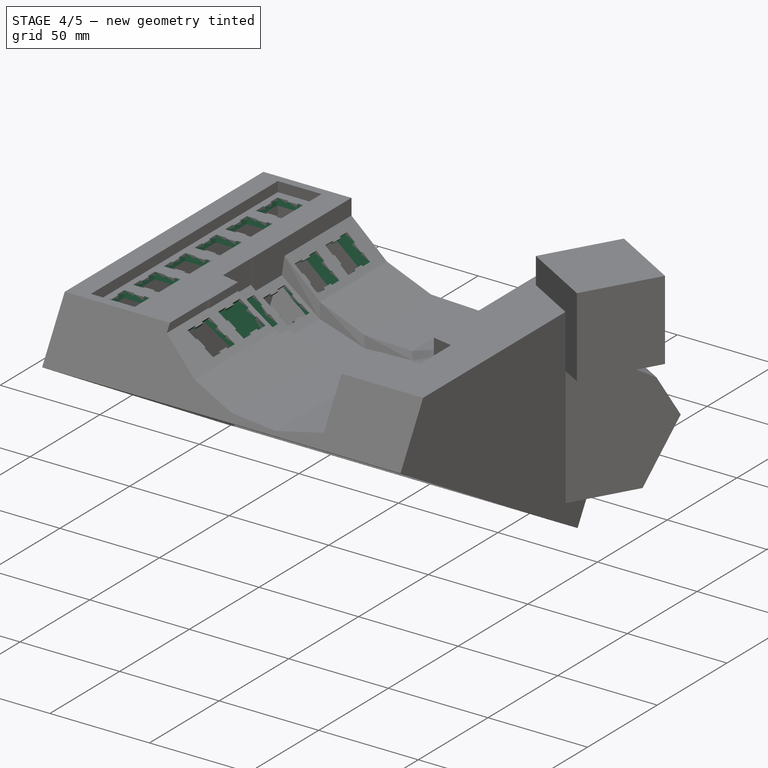
[diagram: stage 4 of 5 — iso view after this stage's code; geometry added in this stage tinted green]
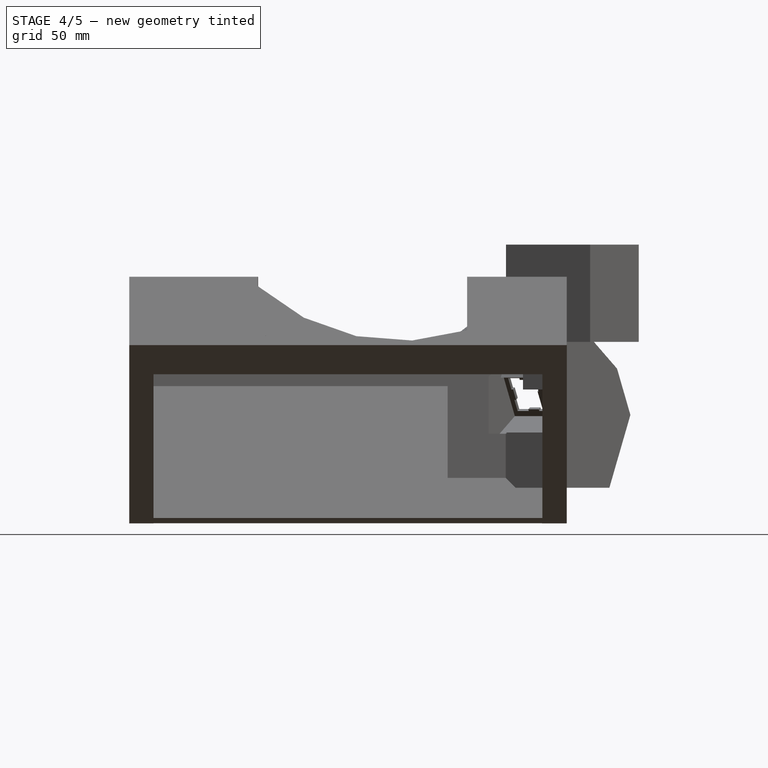
[diagram: stage 4 of 5 — front view after this stage's code; geometry added in this stage tinted green]
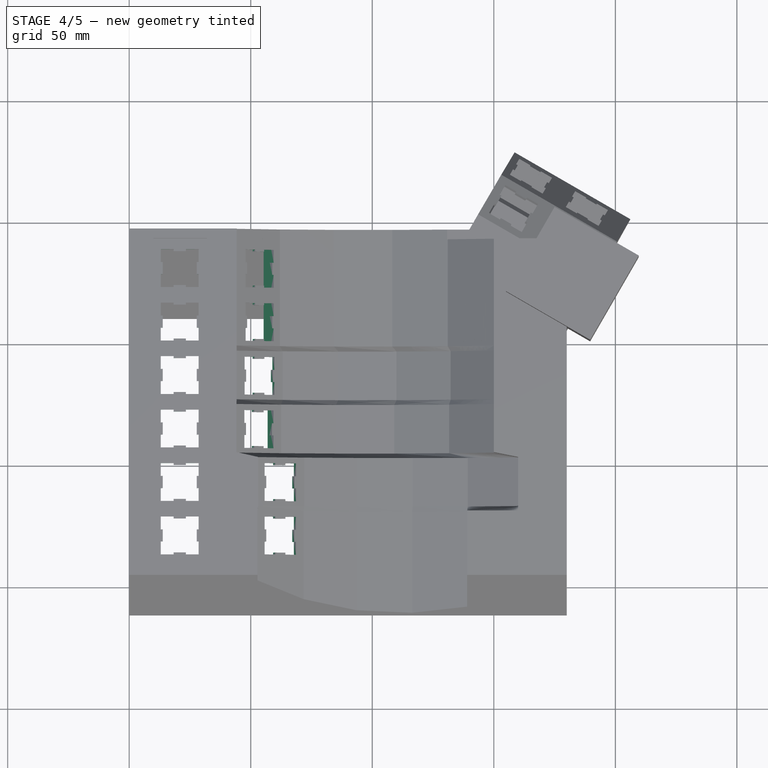
[diagram: stage 4 of 5 — top view after this stage's code; geometry added in this stage tinted green]
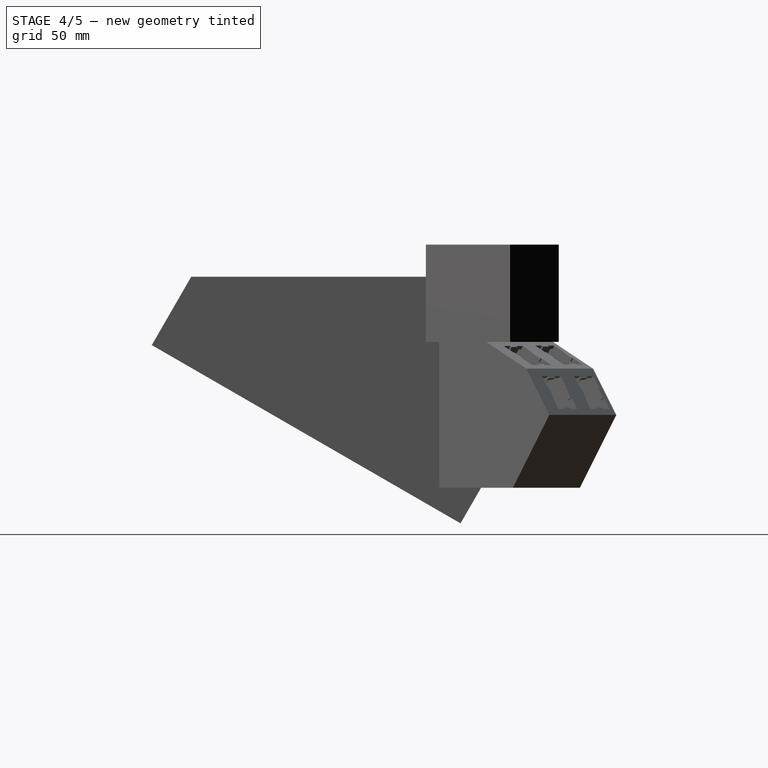
[diagram: stage 4 of 5 — right view after this stage's code; geometry added in this stage tinted green]
FEATURE [Part::Box] Box004  label="Cube004"
  AttacherType = Attacher::AttachEngine3D
  Height = 40
  Length = 40
  Placement = pos=(165,20,35) rot=(0,0,1;0rad)
  Width = 40
FEATURE [Part::Box] Box005  label="Cube005"
  AttacherType = Attacher::AttachEngine3D
  Height = 40
  Length = 60
  Placement = pos=(140,54,3) rot=(0,-1,0;0.698132rad)
  Width = 100
FEATURE [Part::Box] Box006  label="Cube006"
  AttacherType = Attacher::AttachEngine3D
  Height = 40
  Length = 60
  Placement = pos=(114,54,0) rot=(0,-1,0;0.349066rad)
  Width = 100
FEATURE [Part::Box] Box007  label="Cube007"
  AttacherType = Attacher::AttachEngine3D
  Height = 40
  Length = 60
  Placement = pos=(35,52,13) rot=(0,1,0;0.296706rad)
  Width = 100
FEATURE [Part::Box] Box008  label="Cube008"
  AttacherType = Attacher::AttachEngine3D
  Height = 40
  Length = 60
  Placement = pos=(5,52,40) rot=(0,1,0;0.698132rad)
  Width = 100
FEATURE [Part::Box] Box009  label="Cube009"
  AttacherType = Attacher::AttachEngine3D
  Height = 40
  Length = 20
  Placement = pos=(30,0,30) rot=(0,0,1;0rad)
  Width = 52
FEATURE [Part::Box] Box010  label="Cube010"
  AttacherType = Attacher::AttachEngine3D
  Height = 40
  Length = 60
  Placement = pos=(70,2,13) rot=(0,1,0;0.087266rad)
  Width = 50
FEATURE [Part::Box] Box011  label="Cube011"
  AttacherType = Attacher::AttachEngine3D
  Height = 40
  Length = 60
  Placement = pos=(46,2,26) rot=(0,1,0;0.366519rad)
  Width = 50
FEATURE [Part::Box] Box012  label="Cube012"
  AttacherType = Attacher::AttachEngine3D
  Height = 40
  Length = 60
  Placement = pos=(29,2,37) rot=(0,1,0;0.558505rad)
  Width = 50
FEATURE [Part::Box] Box013  label="Cube013"
  AttacherType = Attacher::AttachEngine3D
  Height = 40
  Length = 60
  Placement = pos=(120,2,10) rot=(0,-1,0;0.191986rad)
  Width = 50
FEATURE [Part::Box] Box014  label="Cube014"
  AttacherType = Attacher::AttachEngine3D
  Height = 40
  Length = 40
  Placement = pos=(152,28,14) rot=(0,-1,0;0.453786rad)
  Width = 28
FEATURE [Part::Box] Box015  label="Cube015"
  AttacherType = Attacher::AttachEngine3D
  Height = 40
  Length = 60
  Placement = pos=(115,50,0) rot=(0,-1,0;0.349066rad)
  Width = 6
FEATURE [Part::MultiFuse] Fusion  label="SwitchCut"
  Placement = pos=(11,10,53.4) rot=(0,0,1;0rad)
  Shapes = -> [Box016,Extrude]
FEATURE [Part::MultiFuse] Fusion001  label="SwitchCut001"
  Placement = pos=(11,32,53.4) rot=(0,0,1;0rad)
  Shapes = -> [Box016,Extrude]
FEATURE [Part::MultiFuse] Fusion002  label="SwitchCut002"
  Placement = pos=(11,54,53.4) rot=(0,0,1;0rad)
  Shapes = -> [Box016,Extrude]
FEATURE [Part::MultiFuse] Fusion003  label="SwitchCut003"
  Placement = pos=(11,76,53.4) rot=(0,0,1;0rad)
  Shapes = -> [Box016,Extrude]
FEATURE [Part::MultiFuse] Fusion004  label="SwitchCut004"
  Placement = pos=(11,98,53.4) rot=(0,0,1;0rad)
  Shapes = -> [Box016,Extrude]
FEATURE [Part::MultiFuse] Fusion005  label="SwitchCut005"
  Placement = pos=(11,120,53.4) rot=(0,0,1;0rad)
  Shapes = -> [Box016,Extrude]
FEATURE [Part::Cut] Cut004
  Base = -> Cut003
  Tool = -> Box004
FEATURE [Part::Cut] Cut005
  Base = -> Cut004
  Tool = -> Box005
FEATURE [Part::Cut] Cut006
  Base = -> Cut005
  Tool = -> Box006
FEATURE [Part::Cut] Cut007
  Base = -> Cut006
  Tool = -> Box007
FEATURE [Part::Cut] Cut008
  Base = -> Cut007
  Tool = -> Box008
FEATURE [Part::Cut] Cut009
  Base = -> Cut008
  Tool = -> Box009
FEATURE [Part::Cut] Cut010
  Base = -> Cut009
  Tool = -> Box010
FEATURE [Part::Cut] Cut011
  Base = -> Cut010
  Tool = -> Box011
FEATURE [Part::Cut] Cut012
  Base = -> Cut011
  Tool = -> Box012
FEATURE [Part::Cut] Cut013
  Base = -> Cut012
  Tool = -> Box013
FEATURE [Part::Cut] Cut014
  Base = -> Cut013
  Tool = -> Box014
FEATURE [Part::Cut] Cut015
  Base = -> Cut014
  Tool = -> Box015
FEATURE [Part::MultiFuse] Fusion006  label="SwitchCut006"
  Placement = pos=(11,120,53.4) rot=(0,0,1;0rad)
  Shapes = -> [Box016,Extrude]
FEATURE [Part::MultiFuse] Fusion007  label="SwitchCut007"
  Placement = pos=(42,10,57.4) rot=(0,1,0;0.593412rad)
  Shapes = -> [Box016,Extrude]
FEATURE [Part::MultiFuse] Fusion008  label="SwitchCut008"
  Placement = pos=(42,32,57.4) rot=(0,1,0;0.593412rad)
  Shapes = -> [Box016,Extrude]
FEATURE [Part::MultiFuse] Fusion009  label="SwitchCut009"
  Placement = pos=(32,54,50) rot=(0,1,0;0.698132rad)
  Shapes = -> [Box016,Extrude]
FEATURE [Part::MultiFuse] Fusion010  label="SwitchCut010"
  Placement = pos=(32.8,76,45.6) rot=(0,1,0;0.654498rad)
  Shapes = -> [Box016,Extrude]
FEATURE [Part::MultiFuse] Fusion011  label="SwitchCut011"
  Placement = pos=(32,98,54) rot=(0,1,0;0.733038rad)
  Shapes = -> [Box016,Extrude]
FEATURE [Part::MultiFuse] Fusion012  label="SwitchCut012"
  Placement = pos=(32,120,54) rot=(0,1,0;0.733038rad)
  Shapes = -> [Box016,Extrude]
FEATURE [Part::Cut] Cut016
  Base = -> Cut015
  Tool = -> Fusion
FEATURE [Part::Cut] Cut017
  Base = -> Cut016
  Tool = -> Fusion001
FEATURE [Part::Cut] Cut018
  Base = -> Cut017
  Tool = -> Fusion002
FEATURE [Part::Cut] Cut019
  Base = -> Cut018
  Tool = -> Fusion003
FEATURE [Part::Cut] Cut020
  Base = -> Cut019
  Tool = -> Fusion004
FEATURE [Part::Cut] Cut021
  Base = -> Cut020
  Tool = -> Fusion005
FEATURE [Part::Cut] Cut022
  Base = -> Cut021
  Tool = -> Fusion006
FEATURE [Part::Cut] Cut023
  Base = -> Cut022
  Tool = -> Fusion007
FEATURE [Part::Cut] Cut024
  Base = -> Cut023
  Tool = -> Fusion008
FEATURE [Part::Cut] Cut025
  Base = -> Cut024
  Tool = -> Fusion009
FEATURE [Part::Cut] Cut026
  Base = -> Cut025
  Tool = -> Fusion010
FEATURE [Part::Cut] Cut027
  Base = -> Cut026
  Tool = -> Fusion011
FEATURE [Part::Cut] Cut028
  Base = -> Cut027
  Tool = -> Fusion012
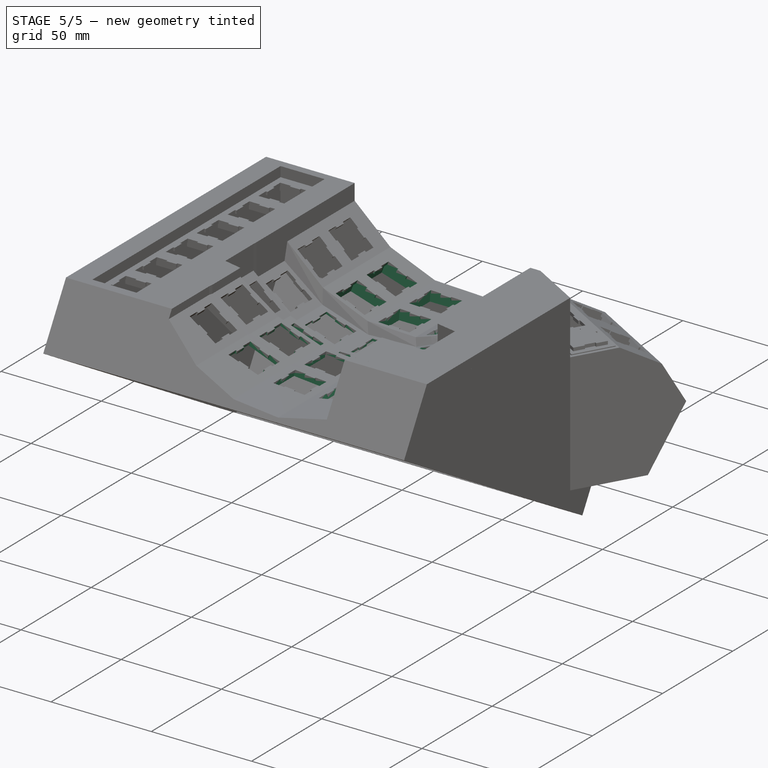
[diagram: stage 5 of 5 — iso view after this stage's code; geometry added in this stage tinted green]
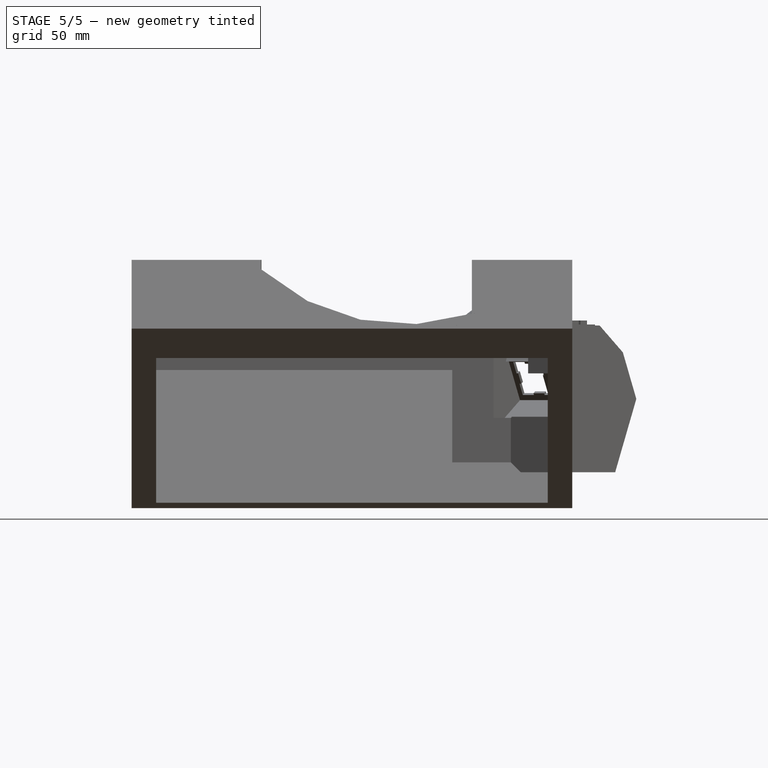
[diagram: stage 5 of 5 — front view after this stage's code; geometry added in this stage tinted green]
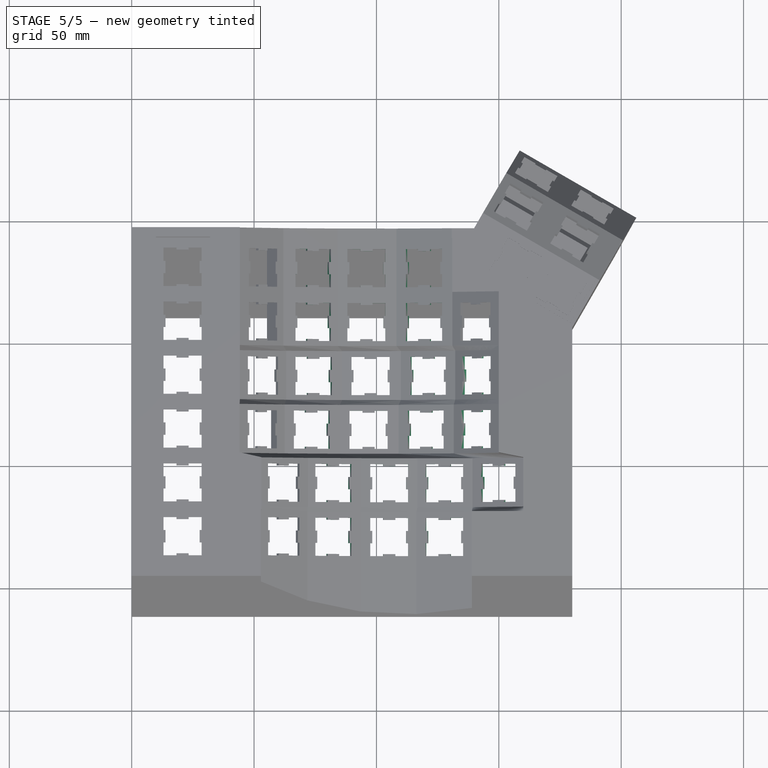
[diagram: stage 5 of 5 — top view after this stage's code; geometry added in this stage tinted green]
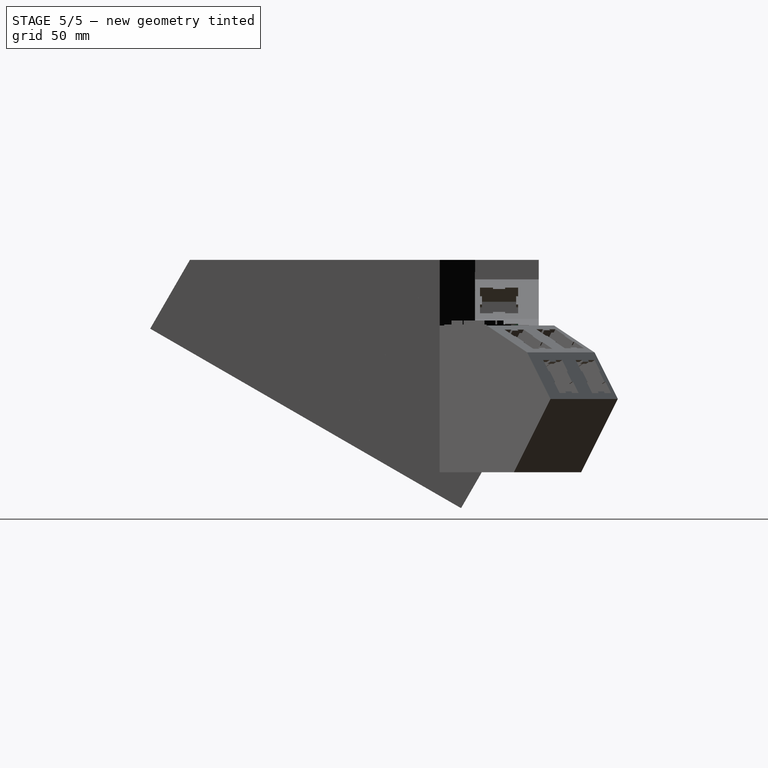
[diagram: stage 5 of 5 — right view after this stage's code; geometry added in this stage tinted green]
FEATURE [Part::MultiFuse] Fusion013  label="SwitchCut013"
  Placement = pos=(66,10,42.4) rot=(0,1,0;0.340339rad)
  Shapes = -> [Box016,Extrude]
FEATURE [Part::MultiFuse] Fusion014  label="SwitchCut014"
  Placement = pos=(66,32,42.4) rot=(0,1,0;0.340339rad)
  Shapes = -> [Box016,Extrude]
FEATURE [Part::MultiFuse] Fusion015  label="SwitchCut015"
  Placement = pos=(57,54,31.6) rot=(0,1,0;0.349066rad)
  Shapes = -> [Box016,Extrude]
FEATURE [Part::MultiFuse] Fusion016  label="SwitchCut016"
  Placement = pos=(58,76,28.8) rot=(0,1,0;0.340339rad)
  Shapes = -> [Box016,Extrude]
FEATURE [Part::MultiFuse] Fusion017  label="SwitchCut017"
  Placement = pos=(57,98,34.6) rot=(0,1,0;0.383972rad)
  Shapes = -> [Box016,Extrude]
FEATURE [Part::MultiFuse] Fusion018  label="SwitchCut018"
  Placement = pos=(57,120,34.6) rot=(0,1,0;0.383972rad)
  Shapes = -> [Box016,Extrude]
FEATURE [Part::MultiFuse] Fusion019  label="SwitchCut019"
  Placement = pos=(94,10,34) rot=(0,1,0;0.069813rad)
  Shapes = -> [Box016,Extrude]
FEATURE [Part::MultiFuse] Fusion020  label="SwitchCut020"
  Placement = pos=(94,32,34) rot=(0,1,0;0.069813rad)
  Shapes = -> [Box016,Extrude]
FEATURE [Part::MultiFuse] Fusion021  label="SwitchCut021"
  Placement = pos=(87,54,22.8) rot=(0,1,0;0rad)
  Shapes = -> [Box016,Extrude]
FEATURE [Part::MultiFuse] Fusion022  label="SwitchCut022"
  Placement = pos=(88,76,21) rot=(0,-1,0;0.008727rad)
  Shapes = -> [Box016,Extrude]
FEATURE [Part::MultiFuse] Fusion023  label="SwitchCut023"
  Placement = pos=(85.4,98,25.2) rot=(0,1,0;0.034907rad)
  Shapes = -> [Box016,Extrude]
FEATURE [Part::MultiFuse] Fusion024  label="SwitchCut024"
  Placement = pos=(85.4,120,25.2) rot=(0,1,0;0.034907rad)
  Shapes = -> [Box016,Extrude]
FEATURE [Part::MultiFuse] Fusion025  label="SwitchCut025"
  Placement = pos=(122,10,33) rot=(0,-1,0;0.181514rad)
  Shapes = -> [Box016,Extrude]
FEATURE [Part::MultiFuse] Fusion026  label="SwitchCut026"
  Placement = pos=(122,32,33) rot=(0,-1,0;0.181514rad)
  Shapes = -> [Box016,Extrude]
FEATURE [Part::MultiFuse] Fusion027  label="SwitchCut027"
  Placement = pos=(118.4,54,24.8) rot=(0,-1,0;0.352557rad)
  Shapes = -> [Box016,Extrude]
FEATURE [Part::MultiFuse] Fusion028  label="SwitchCut028"
  Placement = pos=(120,76,24) rot=(0,-1,0;0.383972rad)
  Shapes = -> [Box016,Extrude]
FEATURE [Part::MultiFuse] Fusion029  label="SwitchCut029"
  Placement = pos=(116.8,98,26) rot=(0,-1,0;0.314159rad)
  Shapes = -> [Box016,Extrude]
FEATURE [Part::Cut] Cut029
  Base = -> Cut028
  Tool = -> Fusion013
FEATURE [Part::Cut] Cut030
  Base = -> Cut029
  Tool = -> Fusion014
FEATURE [Part::Cut] Cut031
  Base = -> Cut030
  Tool = -> Fusion015
FEATURE [Part::Cut] Cut032
  Base = -> Cut031
  Tool = -> Fusion016
FEATURE [Part::Cut] Cut033
  Base = -> Cut032
  Tool = -> Fusion017
FEATURE [Part::Cut] Cut034
  Base = -> Cut033
  Tool = -> Fusion018
FEATURE [Part::Cut] Cut035
  Base = -> Cut034
  Tool = -> Fusion019
FEATURE [Part::Cut] Cut036
  Base = -> Cut035
  Tool = -> Fusion020
FEATURE [Part::Cut] Cut037
  Base = -> Cut036
  Tool = -> Fusion021
FEATURE [Part::Cut] Cut038
  Base = -> Cut037
  Tool = -> Fusion022
FEATURE [Part::Cut] Cut039
  Base = -> Cut038
  Tool = -> Fusion023
FEATURE [Part::Cut] Cut040
  Base = -> Cut039
  Tool = -> Fusion024
FEATURE [Part::MultiFuse] Fusion030  label="SwitchCut030"
  Placement = pos=(116.8,120,26) rot=(0,-1,0;0.314159rad)
  Shapes = -> [Box016,Extrude]
FEATURE [Part::MultiFuse] Fusion031  label="SwitchCut031"
  Placement = pos=(150.4,32,39.4) rot=(0,-1,0;0.453786rad)
  Shapes = -> [Box016,Extrude]
FEATURE [Part::MultiFuse] Fusion032  label="SwitchCut032"
  Placement = pos=(148,76,37.2) rot=(0,1,0;-0.733038rad)
  Shapes = -> [Box016,Extrude]
FEATURE [Part::MultiFuse] Fusion034  label="SwitchCut034"
  Placement = pos=(147,54,37.4) rot=(0,-1,0;0.698132rad)
  Shapes = -> [Box016,Extrude]
FEATURE [Part::Cut] Cut041
  Base = -> Cut040
  Tool = -> Fusion025
FEATURE [Part::Cut] Cut042
  Base = -> Cut041
  Tool = -> Fusion026
FEATURE [Part::Cut] Cut043
  Base = -> Cut042
  Tool = -> Fusion027
FEATURE [Part::Cut] Cut044
  Base = -> Cut043
  Tool = -> Fusion028
FEATURE [Part::Cut] Cut045
  Base = -> Cut044
  Tool = -> Fusion029
FEATURE [Part::Cut] Cut046
  Base = -> Cut045
  Tool = -> Fusion030
FEATURE [Part::Cut] Cut047
  Base = -> Cut046
  Tool = -> Fusion031
FEATURE [Part::Cut] Cut048
  Base = -> Cut047
  Tool = -> Fusion034
FEATURE [Part::Cut] Cut049
  Base = -> Cut048
  Tool = -> Fusion032
FEATURE [Part::Box] Box017  label="Cube017"
  AttacherType = Attacher::AttachEngine3D
  Height = 30
  Length = 20
  Placement = pos=(131,120,50) rot=(0,0,1;0rad)
  Width = 22
FEATURE [Part::Box] Box018  label="Cube018"
  AttacherType = Attacher::AttachEngine3D
  Height = 30
  Length = 40
  Placement = pos=(143,120,18.6) rot=(0,-1,0;0.698132rad)
  Width = 40
FEATURE [Part::Box] Box019  label="Cube019"
  AttacherType = Attacher::AttachEngine3D
  Height = 50
  Length = 60
  Placement = pos=(131,120,32) rot=(0,0,1;0rad)
  Width = 30
FEATURE [Part::Cut] Cut068
  Base = -> Cut049
  Tool = -> Fusion033
FEATURE [Part::Cut] Cut069
  Base = -> Cut068
  Tool = -> Box017
FEATURE [Part::Cut] Cut070
  Base = -> Cut069
  Tool = -> Box018
FEATURE [Part::Cut] Cut071  label="Finger Frame"
  Base = -> Cut070
  Tool = -> Box019
FEATURE [Part::Cut] Cut115  label="Finger Switch Frame"
  Base = -> Cut071
  Tool = -> Box089
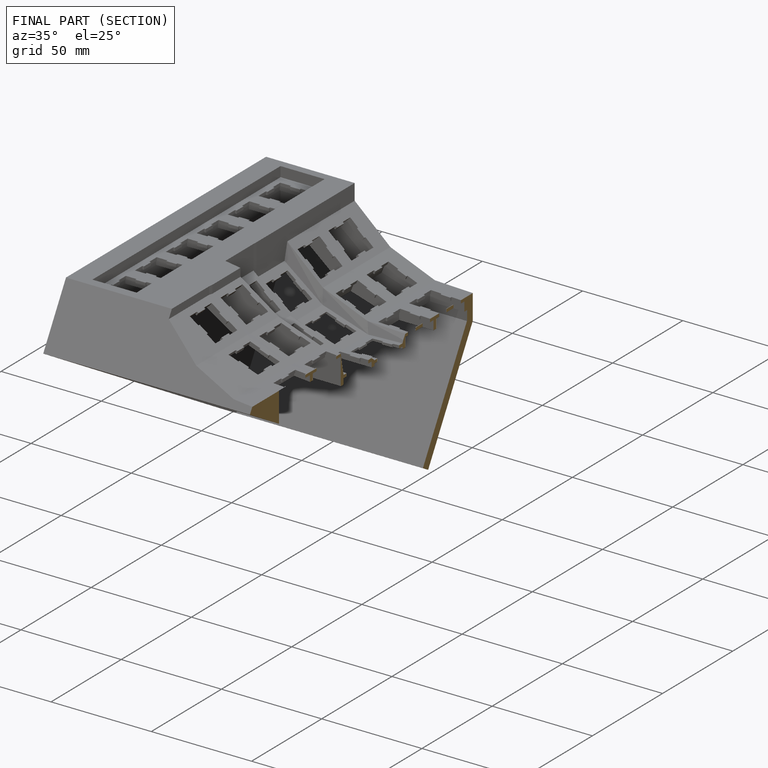
[diagram: finished part — half-section view (interior)]
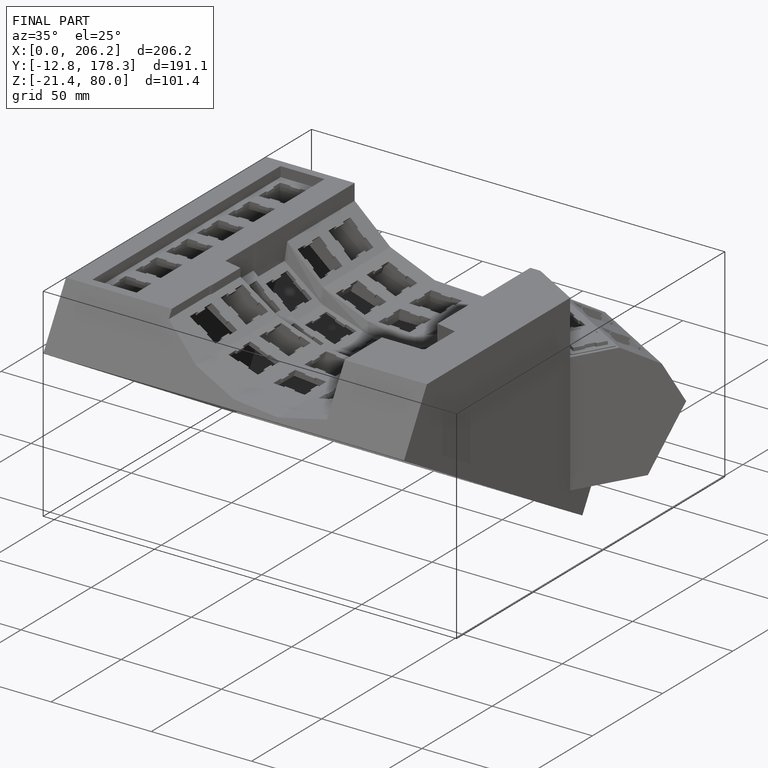
[diagram: finished part — iso view with bounding-box wireframe]
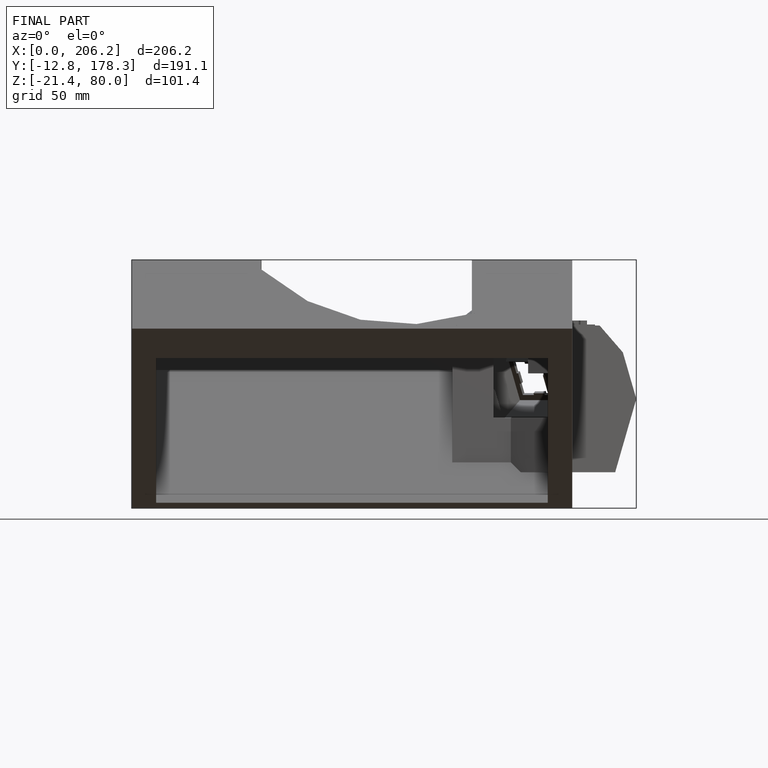
[diagram: finished part — front view with bounding-box wireframe]
